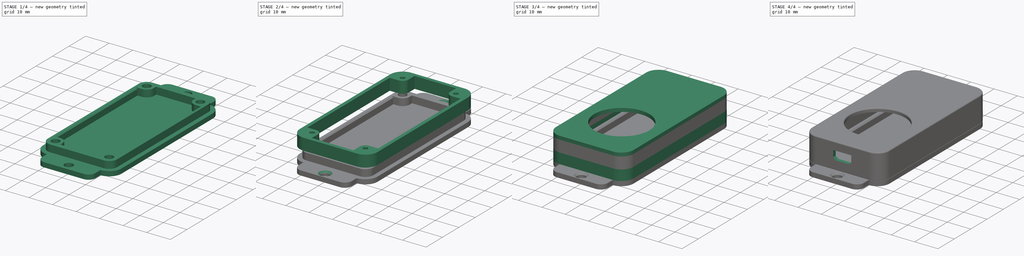
[diagram: build sequence overview — one tinted view per stage of 4, left to right]
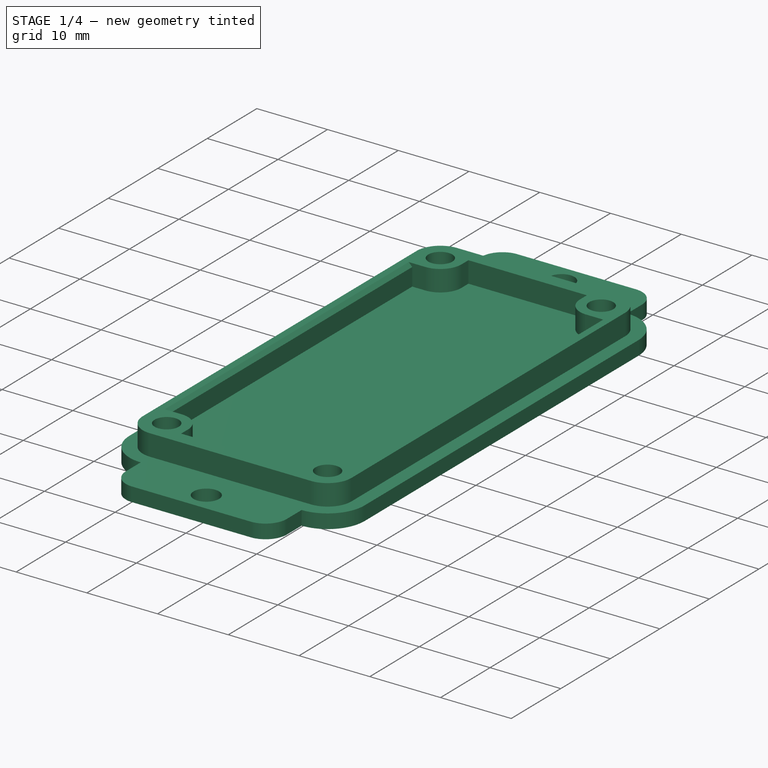
[diagram: stage 1 of 4 — iso view after this stage's code; geometry added in this stage tinted green]
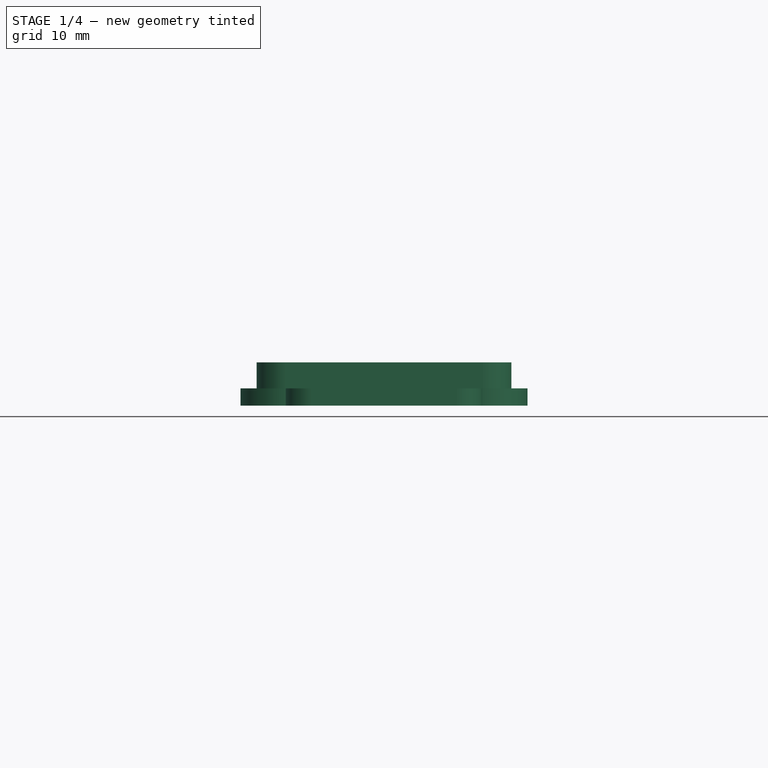
[diagram: stage 1 of 4 — front view after this stage's code; geometry added in this stage tinted green]
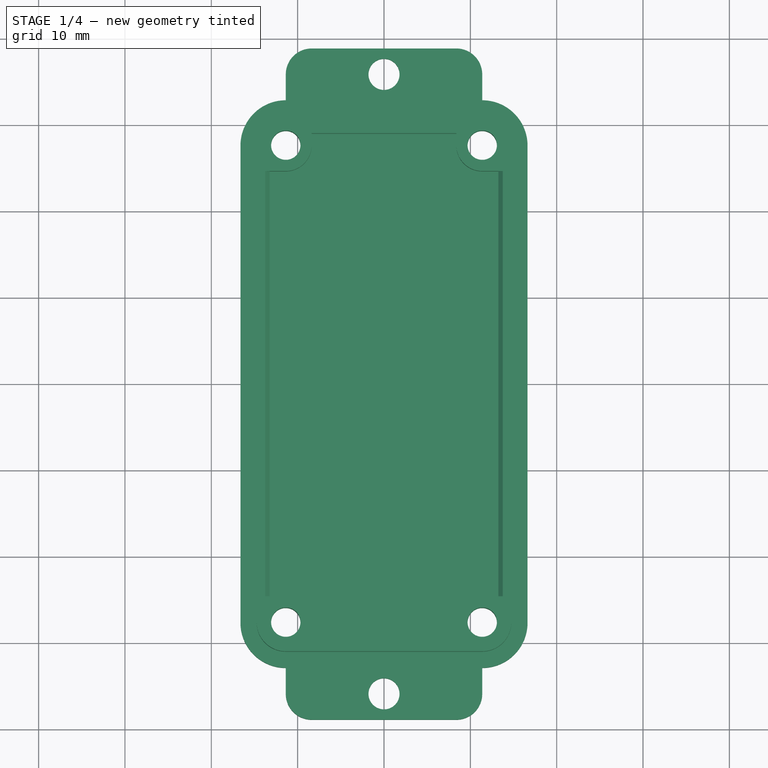
[diagram: stage 1 of 4 — top view after this stage's code; geometry added in this stage tinted green]
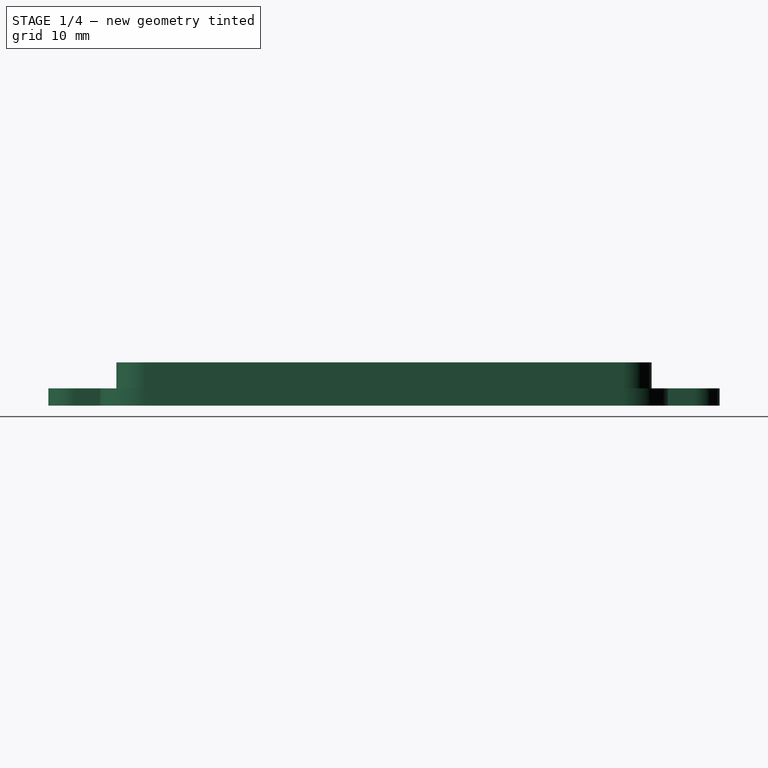
[diagram: stage 1 of 4 — right view after this stage's code; geometry added in this stage tinted green]
FCSTD DOCUMENT  (FreeCAD 0.19R)
Label: PIR Case V1
License: All rights reserved
LicenseURL: http://en.wikipedia.org/wiki/All_rights_reserved
objects: Sketcher::SketchObject×7, PartDesign::Pad×5, PartDesign::Chamfer×3, PartDesign::Fillet×2, PartDesign::Body×2, PartDesign::Pocket×1
note: 31 computed .brp shape members not serialized (recipe doc carries the construction recipe); baked Part::Feature solids carry a one-line shape summary decoded from their .brp

FEATURE [PartDesign::Body] Body  label="Front Section"
  Group = -> [Sketch,Sketch001,Pad,Sketch002,Pad001,Sketch003,Pad002,Sketch004,Pocket,Fillet,Fillet001]
  Origin = -> Origin
  Tip = -> Fillet001
FEATURE [Sketcher::SketchObject] Sketch005  label="Rear Panel Sketch"
  AttachmentOffset = pos=(0,0,-9.5) rot=(0,0,1;0rad)
  FullyConstrained = true
  MapMode = 5
  Placement = pos=(0,0,-9.5) rot=(0,0,1;0rad)
  Support = -> [XY_Plane001]
  sketch-geometry (47):
    g0: LineSegment StartX=-11.375 StartY=27.625 StartZ=0 EndX=11.375 EndY=27.625 EndZ=0
    g1: LineSegment StartX=11.375 StartY=27.625 StartZ=0 EndX=11.375 EndY=-27.625 EndZ=0
    g2: LineSegment StartX=11.375 StartY=-27.625 StartZ=0 EndX=-11.375 EndY=-27.625 EndZ=0
    g3: LineSegment StartX=-11.375 StartY=-27.625 StartZ=0 EndX=-11.375 EndY=27.625 EndZ=0
    g4: LineSegment StartX=-11.375 StartY=30.875 StartZ=0 EndX=11.375 EndY=30.875 EndZ=0
    g5: LineSegment StartX=14.625 StartY=27.625 StartZ=0 EndX=14.625 EndY=-27.625 EndZ=0
    g6: LineSegment StartX=11.375 StartY=-30.875 StartZ=0 EndX=-11.375 EndY=-30.875 EndZ=0
    g7: LineSegment StartX=-14.625 StartY=-27.625 StartZ=0 EndX=-14.625 EndY=27.625 EndZ=0
    g8: Circle CenterX=-11.375 CenterY=27.625 CenterZ=0 NormalX=0 NormalY=0 NormalZ=1 AngleXU=0 Radius=1.7
    g9: Circle CenterX=11.375 CenterY=27.625 CenterZ=0 NormalX=0 NormalY=0 NormalZ=1 AngleXU=0 Radius=1.7
    g10: Circle CenterX=11.375 CenterY=-27.625 CenterZ=0 NormalX=0 NormalY=0 NormalZ=1 AngleXU=0 Radius=1.7
    g11: Circle CenterX=-11.375 CenterY=-27.625 CenterZ=0 NormalX=0 NormalY=0 NormalZ=1 AngleXU=0 Radius=1.7
    g12: ArcOfCircle CenterX=11.375 CenterY=27.625 CenterZ=0 NormalX=0 NormalY=0 NormalZ=1 AngleXU=0 Radius=3.25 StartAngle=-1.3261e-12 EndAngle=1.5708
    g13: ArcOfCircle CenterX=-11.375 CenterY=27.625 CenterZ=0 NormalX=0 NormalY=0 NormalZ=1 AngleXU=0 Radius=3.25 StartAngle=1.5708 EndAngle=3.14159
    g14: ArcOfCircle CenterX=-11.375 CenterY=-27.625 CenterZ=0 NormalX=0 NormalY=0 NormalZ=1 AngleXU=0 Radius=3.25 StartAngle=3.14159 EndAngle=4.71239
    g15: ArcOfCircle CenterX=11.375 CenterY=-27.625 CenterZ=0 NormalX=0 NormalY=0 NormalZ=1 AngleXU=0 Radius=3.25 StartAngle=4.71239 EndAngle=6.28319
    g16: LineSegment StartX=0 StartY=-27.625 StartZ=0 EndX=0 EndY=-11.125 EndZ=0
    g17: LineSegment StartX=-11.375 StartY=31.375 StartZ=0 EndX=11.375 EndY=31.375 EndZ=0
    g18: LineSegment StartX=15.125 StartY=27.625 StartZ=0 EndX=15.125 EndY=-27.625 EndZ=0
    g19: LineSegment StartX=11.375 StartY=-31.375 StartZ=0 EndX=-11.375 EndY=-31.375 EndZ=0
    g20: LineSegment StartX=-15.125 StartY=-27.625 StartZ=0 EndX=-15.125 EndY=27.625 EndZ=0
    g21: ArcOfCircle CenterX=11.375 CenterY=27.625 CenterZ=0 NormalX=0 NormalY=0 NormalZ=1 AngleXU=0 Radius=3.75 StartAngle=-8.633e-13 EndAngle=1.5708
    g22: ArcOfCircle CenterX=-11.375 CenterY=27.625 CenterZ=0 NormalX=0 NormalY=0 NormalZ=1 AngleXU=0 Radius=3.75 StartAngle=1.5708 EndAngle=3.14159
    g23: ArcOfCircle CenterX=-11.375 CenterY=-27.625 CenterZ=0 NormalX=0 NormalY=0 NormalZ=1 AngleXU=0 Radius=3.75 StartAngle=3.14159 EndAngle=4.71239
    g24: ArcOfCircle CenterX=11.375 CenterY=-27.625 CenterZ=0 NormalX=0 NormalY=0 NormalZ=1 AngleXU=0 Radius=3.75 StartAngle=4.71239 EndAngle=6.28319
    g25: LineSegment StartX=-11.375 StartY=32.875 StartZ=0 EndX=11.375 EndY=32.875 EndZ=0
    g26: LineSegment StartX=16.625 StartY=27.625 StartZ=0 EndX=16.625 EndY=-27.625 EndZ=0
    g27: LineSegment StartX=11.375 StartY=-32.875 StartZ=0 EndX=-11.375 EndY=-32.875 EndZ=0
    g28: LineSegment StartX=-16.625 StartY=-27.625 StartZ=0 EndX=-16.625 EndY=27.625 EndZ=0
    g29: ArcOfCircle CenterX=-11.375 CenterY=27.625 CenterZ=0 NormalX=0 NormalY=0 NormalZ=1 AngleXU=0 Radius=5.25 StartAngle=1.5708 EndAngle=3.14159
    g30: ArcOfCircle CenterX=-11.375 CenterY=-27.625 CenterZ=0 NormalX=0 NormalY=0 NormalZ=1 AngleXU=0 Radius=5.25 StartAngle=3.14159 EndAngle=4.71239
    g31: ArcOfCircle CenterX=11.375 CenterY=-27.625 CenterZ=0 NormalX=0 NormalY=0 NormalZ=1 AngleXU=0 Radius=5.25 StartAngle=4.71239 EndAngle=6.28319
    g32: ArcOfCircle CenterX=11.375 CenterY=27.625 CenterZ=0 NormalX=0 NormalY=0 NormalZ=1 AngleXU=0 Radius=5.25 StartAngle=-3.144e-13 EndAngle=1.5708
    g33: LineSegment StartX=-8.375 StartY=-38.875 StartZ=0 EndX=8.375 EndY=-38.875 EndZ=0
    g34: LineSegment StartX=11.375 StartY=-35.875 StartZ=0 EndX=11.375 EndY=-32.875 EndZ=0
    g35: LineSegment StartX=-11.375 StartY=-32.875 StartZ=0 EndX=-11.375 EndY=-35.875 EndZ=0
    g36: LineSegment StartX=11.375 StartY=32.875 StartZ=0 EndX=11.375 EndY=35.875 EndZ=0
    g37: LineSegment StartX=8.375 StartY=38.875 StartZ=0 EndX=-8.375 EndY=38.875 EndZ=0
    g38: LineSegment StartX=-11.375 StartY=35.875 StartZ=0 EndX=-11.375 EndY=32.875 EndZ=0
    g39: LineSegment StartX=1.9e-15 StartY=32.875 StartZ=0 EndX=1.9e-15 EndY=38.875 EndZ=0
    g40: Circle CenterX=1.9e-15 CenterY=35.875 CenterZ=0 NormalX=0 NormalY=0 NormalZ=1 AngleXU=0 Radius=1.8
    g41: ArcOfCircle CenterX=8.375 CenterY=35.875 CenterZ=0 NormalX=0 NormalY=0 NormalZ=1 AngleXU=0 Radius=3 StartAngle=1.34829e-11 EndAngle=1.5708
    g42: ArcOfCircle CenterX=-8.375 CenterY=35.875 CenterZ=0 NormalX=0 NormalY=0 NormalZ=1 AngleXU=0 Radius=3 StartAngle=1.5708 EndAngle=3.14159
    g43: ArcOfCircle CenterX=-8.375 CenterY=-35.875 CenterZ=0 NormalX=0 NormalY=0 NormalZ=1 AngleXU=0 Radius=3 StartAngle=3.14159 EndAngle=4.71239
    g44: ArcOfCircle CenterX=8.375 CenterY=-35.875 CenterZ=0 NormalX=0 NormalY=0 NormalZ=1 AngleXU=0 Radius=3 StartAngle=4.71239 EndAngle=6.28319
    g45: LineSegment StartX=-1.3e-15 StartY=-38.875 StartZ=0 EndX=-1.3e-15 EndY=-32.875 EndZ=0
    g46: Circle CenterX=-1.3e-15 CenterY=-35.875 CenterZ=0 NormalX=0 NormalY=0 NormalZ=1 AngleXU=0 Radius=1.8
  constraints (104):
    c: Coincident(g0,g1)
    c: Coincident(g1,g2)
    c: Coincident(g2,g3)
    c: Coincident(g3,g0)
    c: Horizontal(g2)
    c: Vertical(g3)
    c: Horizontal(g4)
    c: Horizontal(g6)
    c: Vertical(g5)
    c: Coincident(g8,g0)
    c: Coincident(g9,g0)
    c: Coincident(g10,g1)
    c: Coincident(g11,g2)
    c: Radius(g11) = 1.7
    c: Equal(g11,g8)
    c: Equal(g11,g9)
    c: Equal(g11,g10)
    c: Symmetric(g0,g0,g-2)
    c: DistanceX(g0,g0) = 22.75
    c: Symmetric(g0,g1,g-1)
    c: DistanceY(g1,g1) = 55.25
    c: Tangent(g4,g12) = 1.5708
    c: Tangent(g5,g12) = 1.5708
    c: Tangent(g4,g13) = 1.5708
    c: Tangent(g7,g13) = 1.5708
    c: Tangent(g7,g14) = 1.5708
    c: Tangent(g6,g14) = 1.5708
    c: Tangent(g6,g15) = 1.5708
    c: Tangent(g5,g15) = 1.5708
    c: Coincident(g15,g1)
    c: Coincident(g2,g14)
    c: Coincident(g13,g0)
    c: Coincident(g12,g0)
    c: DistanceX(g7,g5) = 29.25
    c: Vertical(g16)
    c: DistanceY(g16,g16) = 16.5
    c: PointOnObject(g16,g2)
    c: PointOnObject(g16,g-2)
    c: Horizontal(g17)
    c: Horizontal(g19)
    c: Vertical(g18)
    c: Tangent(g17,g21) = 1.5708
    c: Tangent(g18,g21) = 1.5708
    c: Tangent(g17,g22) = 1.5708
    c: Tangent(g20,g22) = 1.5708
    c: Tangent(g20,g23) = 1.5708
    c: Tangent(g19,g23) = 1.5708
    c: Tangent(g19,g24) = 1.5708
    c: Tangent(g18,g24) = 1.5708
    c: Coincident(g24,g1)
    c: Coincident(g23,g2)
    c: Coincident(g21,g0)
    c: Coincident(g0,g22)
    c: DistanceY(g4,g17) = 0.5
    c: Horizontal(g25)
    c: Horizontal(g27)
    c: Vertical(g26)
    c: Tangent(g25,g29) = 1.5708
    c: Tangent(g28,g29) = 1.5708
    c: Tangent(g28,g30) = 1.5708
    c: Tangent(g27,g30) = 1.5708
    c: Tangent(g27,g31) = 1.5708
    c: Tangent(g26,g31) = 1.5708
    c: Tangent(g26,g32) = 1.5708
    c: Tangent(g25,g32) = 1.5708
    c: Coincident(g29,g22)
    c: Coincident(g21,g32)
    c: Coincident(g30,g23)
    c: Coincident(g31,g24)
    c: DistanceY(g17,g25) = 1.5
    c: Horizontal(g33)
    c: Vertical(g34)
    c: Vertical(g35)
    c: Coincident(g31,g34)
    c: Coincident(g35,g30)
    c: Horizontal(g37)
    c: Vertical(g36)
    c: Vertical(g38)
    c: Coincident(g38,g29)
    c: Coincident(g36,g32)
    c: Vertical(g39)
    c: Symmetric(g39,g39,g40)
    c: Tangent(g37,g41) = -1.5708
    c: Tangent(g36,g41) = -1.5708
    c: Tangent(g37,g42) = -1.5708
    c: Tangent(g38,g42) = -1.5708
    c: Symmetric(g37,g37,g39)
    c: PointOnObject(g39,g25)
    c: Tangent(g33,g43) = -1.5708
    c: Tangent(g35,g43) = -1.5708
    c: Tangent(g33,g44) = -1.5708
    c: Tangent(g34,g44) = -1.5708
    c: Vertical(g45)
    c: Symmetric(g45,g45,g46)
    c: Symmetric(g33,g33,g45)
    c: PointOnObject(g45,g27)
    c: Radius(g43) = 3
    c: Equal(g43,g44)
    c: Equal(g43,g42)
    c: Equal(g43,g41)
    c: Radius(g40) = 1.8
    c: Equal(g40,g46)
    c: Equal(g34,g36)
    c: DistanceY(g32,g37) = 6
FEATURE [PartDesign::Pad] Pad003  label="Rear Plate"
  Direction = (1,1,1)
  Length = 2
  Length2 = 100
  Profile = -> Sketch005
  Reversed = true
  Type = 0
FEATURE [Sketcher::SketchObject] Sketch006  label="Rear Panel Screw Holes"
  AttachmentOffset = pos=(0,0,-9.5) rot=(0,0,1;0rad)
  FullyConstrained = true
  MapMode = 5
  Placement = pos=(0,0,-9.5) rot=(0,0,1;0rad)
  Support = -> [XY_Plane001]
  sketch-geometry (49):
    g0: LineSegment StartX=-11.375 StartY=27.625 StartZ=0 EndX=11.375 EndY=27.625 EndZ=0
    g1: LineSegment StartX=11.375 StartY=27.625 StartZ=0 EndX=11.375 EndY=-27.625 EndZ=0
    g2: LineSegment StartX=11.375 StartY=-27.625 StartZ=0 EndX=-11.375 EndY=-27.625 EndZ=0
    g3: LineSegment StartX=-11.375 StartY=-27.625 StartZ=0 EndX=-11.375 EndY=27.625 EndZ=0
    g4: LineSegment StartX=-11.375 StartY=31 StartZ=0 EndX=11.375 EndY=31 EndZ=0
    g5: LineSegment StartX=14.75 StartY=27.625 StartZ=0 EndX=14.75 EndY=-27.625 EndZ=0
    g6: LineSegment StartX=11.375 StartY=-31 StartZ=0 EndX=-11.375 EndY=-31 EndZ=0
    g7: LineSegment StartX=-14.75 StartY=-27.625 StartZ=0 EndX=-14.75 EndY=27.625 EndZ=0
    g8: Circle CenterX=-11.375 CenterY=27.625 CenterZ=0 NormalX=0 NormalY=0 NormalZ=1 AngleXU=0 Radius=1.7
    g9: Circle CenterX=11.375 CenterY=27.625 CenterZ=0 NormalX=0 NormalY=0 NormalZ=1 AngleXU=0 Radius=1.7
    g10: Circle CenterX=11.375 CenterY=-27.625 CenterZ=0 NormalX=0 NormalY=0 NormalZ=1 AngleXU=0 Radius=1.7
    g11: Circle CenterX=-11.375 CenterY=-27.625 CenterZ=0 NormalX=0 NormalY=0 NormalZ=1 AngleXU=0 Radius=1.7
    g12: ArcOfCircle CenterX=11.375 CenterY=27.625 CenterZ=0 NormalX=0 NormalY=0 NormalZ=1 AngleXU=0 Radius=3.375 StartAngle=0 EndAngle=1.5708
    g13: ArcOfCircle CenterX=-11.375 CenterY=27.625 CenterZ=0 NormalX=0 NormalY=0 NormalZ=1 AngleXU=0 Radius=3.375 StartAngle=1.5708 EndAngle=3.14159
    g14: ArcOfCircle CenterX=-11.375 CenterY=-27.625 CenterZ=0 NormalX=0 NormalY=0 NormalZ=1 AngleXU=0 Radius=3.375 StartAngle=3.14159 EndAngle=4.71239
    g15: ArcOfCircle CenterX=11.375 CenterY=-27.625 CenterZ=0 NormalX=0 NormalY=0 NormalZ=1 AngleXU=0 Radius=3.375 StartAngle=4.71239 EndAngle=6.28319
    g16: LineSegment StartX=0 StartY=-27.625 StartZ=0 EndX=0 EndY=-11.125 EndZ=0
    g17: LineSegment StartX=-11.375 StartY=31.5 StartZ=0 EndX=11.375 EndY=31.5 EndZ=0
    g18: LineSegment StartX=15.25 StartY=27.625 StartZ=0 EndX=15.25 EndY=-27.625 EndZ=0
    g19: LineSegment StartX=11.375 StartY=-31.5 StartZ=0 EndX=-11.375 EndY=-31.5 EndZ=0
    g20: LineSegment StartX=-15.25 StartY=-27.625 StartZ=0 EndX=-15.25 EndY=27.625 EndZ=0
    g21: ArcOfCircle CenterX=11.375 CenterY=27.625 CenterZ=0 NormalX=0 NormalY=0 NormalZ=1 AngleXU=0 Radius=3.875 StartAngle=0 EndAngle=1.5708
    g22: ArcOfCircle CenterX=-11.375 CenterY=27.625 CenterZ=0 NormalX=0 NormalY=0 NormalZ=1 AngleXU=0 Radius=3.875 StartAngle=1.5708 EndAngle=3.14159
    g23: ArcOfCircle CenterX=-11.375 CenterY=-27.625 CenterZ=0 NormalX=0 NormalY=0 NormalZ=1 AngleXU=0 Radius=3.875 StartAngle=3.14159 EndAngle=4.71239
    g24: ArcOfCircle CenterX=11.375 CenterY=-27.625 CenterZ=0 NormalX=0 NormalY=0 NormalZ=1 AngleXU=0 Radius=3.875 StartAngle=4.71239 EndAngle=6.28319
    g25: LineSegment StartX=-11.375 StartY=33 StartZ=0 EndX=11.375 EndY=33 EndZ=0
    g26: LineSegment StartX=16.75 StartY=27.625 StartZ=0 EndX=16.75 EndY=-27.625 EndZ=0
    g27: LineSegment StartX=11.375 StartY=-33 StartZ=0 EndX=-11.375 EndY=-33 EndZ=0
    g28: LineSegment StartX=-16.75 StartY=-27.625 StartZ=0 EndX=-16.75 EndY=27.625 EndZ=0
    g29: ArcOfCircle CenterX=-11.375 CenterY=27.625 CenterZ=0 NormalX=0 NormalY=0 NormalZ=1 AngleXU=0 Radius=5.375 StartAngle=1.5708 EndAngle=3.14159
    g30: ArcOfCircle CenterX=-11.375 CenterY=-27.625 CenterZ=0 NormalX=0 NormalY=0 NormalZ=1 AngleXU=0 Radius=5.375 StartAngle=3.14159 EndAngle=4.71239
    g31: ArcOfCircle CenterX=11.375 CenterY=-27.625 CenterZ=0 NormalX=0 NormalY=0 NormalZ=1 AngleXU=0 Radius=5.375 StartAngle=4.71239 EndAngle=6.28319
    g32: ArcOfCircle CenterX=11.375 CenterY=27.625 CenterZ=0 NormalX=0 NormalY=0 NormalZ=1 AngleXU=0 Radius=5.375 StartAngle=0 EndAngle=1.5708
    g33: ArcOfCircle CenterX=-11.375 CenterY=-27.625 CenterZ=0 NormalX=0 NormalY=0 NormalZ=1 AngleXU=0 Radius=3 StartAngle=-9e-16 EndAngle=1.5708
    g34: ArcOfCircle CenterX=11.375 CenterY=-27.625 CenterZ=0 NormalX=0 NormalY=0 NormalZ=1 AngleXU=0 Radius=3 StartAngle=1.5708 EndAngle=3.14159
    g35: LineSegment StartX=8.375 StartY=-29 StartZ=0 EndX=-8.375 EndY=-29 EndZ=0
    g36: LineSegment StartX=-8.375 StartY=-29 StartZ=0 EndX=-8.375 EndY=-27.625 EndZ=0
    g37: LineSegment StartX=8.375 StartY=-27.625 StartZ=0 EndX=8.375 EndY=-29 EndZ=0
    g38: ArcOfCircle CenterX=-11.375 CenterY=27.625 CenterZ=0 NormalX=0 NormalY=0 NormalZ=1 AngleXU=0 Radius=3 StartAngle=4.71239 EndAngle=6.28319
    g39: ArcOfCircle CenterX=11.375 CenterY=27.625 CenterZ=0 NormalX=0 NormalY=0 NormalZ=1 AngleXU=0 Radius=3 StartAngle=3.14159 EndAngle=4.71239
    g40: LineSegment StartX=-8.375 StartY=29 StartZ=0 EndX=8.375 EndY=29 EndZ=0
    g41: LineSegment StartX=8.375 StartY=29 StartZ=0 EndX=8.375 EndY=27.625 EndZ=0
    g42: LineSegment StartX=-8.375 StartY=27.625 StartZ=0 EndX=-8.375 EndY=29 EndZ=0
    g43: LineSegment StartX=-13.25 StartY=-24.625 StartZ=0 EndX=-11.375 EndY=-24.625 EndZ=0
    g44: LineSegment StartX=13.25 StartY=-24.625 StartZ=0 EndX=11.375 EndY=-24.625 EndZ=0
    g45: LineSegment StartX=-13.25 StartY=24.625 StartZ=0 EndX=-11.375 EndY=24.625 EndZ=0
    g46: LineSegment StartX=13.25 StartY=24.625 StartZ=0 EndX=11.375 EndY=24.625 EndZ=0
    g47: LineSegment StartX=-13.25 StartY=-24.625 StartZ=0 EndX=-13.25 EndY=24.625 EndZ=0
    g48: LineSegment StartX=13.25 StartY=24.625 StartZ=0 EndX=13.25 EndY=-24.625 EndZ=0
  constraints (118):
    c: Coincident(g0,g1)
    c: Coincident(g1,g2)
    c: Coincident(g2,g3)
    c: Coincident(g3,g0)
    c: Horizontal(g2)
    c: Vertical(g3)
    c: Horizontal(g4)
    c: Horizontal(g6)
    c: Vertical(g5)
    c: Coincident(g8,g0)
    c: Coincident(g9,g0)
    c: Coincident(g10,g1)
    c: Coincident(g11,g2)
    c: Radius(g11) = 1.7
    c: Equal(g11,g8)
    c: Equal(g11,g9)
    c: Equal(g11,g10)
    c: Symmetric(g0,g0,g-2)
    c: DistanceX(g0,g0) = 22.75
    c: Symmetric(g0,g1,g-1)
    c: DistanceY(g1,g1) = 55.25
    c: Tangent(g4,g12) = 1.5708
    c: Tangent(g5,g12) = 1.5708
    c: Tangent(g4,g13) = 1.5708
    c: Tangent(g7,g13) = 1.5708
    c: Tangent(g7,g14) = 1.5708
    c: Tangent(g6,g14) = 1.5708
    c: Tangent(g6,g15) = 1.5708
    c: Tangent(g5,g15) = 1.5708
    c: Coincident(g15,g1)
    c: Coincident(g2,g14)
    c: Coincident(g13,g0)
    c: Coincident(g12,g0)
    c: DistanceX(g7,g5) = 29.5
    c: Vertical(g16)
    c: DistanceY(g16,g16) = 16.5
    c: PointOnObject(g16,g2)
    c: PointOnObject(g16,g-2)
    c: Horizontal(g17)
    c: Horizontal(g19)
    c: Vertical(g18)
    c: Tangent(g17,g21) = 1.5708
    c: Tangent(g18,g21) = 1.5708
    c: Tangent(g17,g22) = 1.5708
    c: Tangent(g20,g22) = 1.5708
    c: Tangent(g20,g23) = 1.5708
    c: Tangent(g19,g23) = 1.5708
    c: Tangent(g19,g24) = 1.5708
    c: Tangent(g18,g24) = 1.5708
    c: Coincident(g24,g1)
    c: Coincident(g23,g2)
    c: Coincident(g21,g0)
    c: Coincident(g0,g22)
    c: DistanceY(g4,g17) = 0.5
    c: Horizontal(g25)
    c: Horizontal(g27)
    c: Vertical(g26)
    c: Tangent(g25,g29) = 1.5708
    c: Tangent(g28,g29) = 1.5708
    c: Tangent(g28,g30) = 1.5708
    c: Tangent(g27,g30) = 1.5708
    c: Tangent(g27,g31) = 1.5708
    c: Tangent(g26,g31) = 1.5708
    c: Tangent(g26,g32) = 1.5708
    c: Tangent(g25,g32) = 1.5708
    c: Coincident(g29,g22)
    c: Coincident(g21,g32)
    c: Coincident(g30,g23)
    c: Coincident(g31,g24)
    c: DistanceY(g17,g25) = 1.5
    c: Coincident(g33,g11)
    c: PointOnObject(g33,g3)
    c: PointOnObject(g33,g2)
    c: Radius(g33) = 3
    c: Coincident(g34,g10)
    c: PointOnObject(g34,g2)
    c: PointOnObject(g34,g1)
    c: Equal(g33,g34)
    c: Coincident(g35,g36)
    c: Coincident(g37,g35)
    c: Horizontal(g35)
    c: Vertical(g36)
    c: Vertical(g37)
    c: Coincident(g36,g33)
    c: Coincident(g34,g37)
    c: DistanceY(g6,g35) = 2
    c: Coincident(g38,g8)
    c: PointOnObject(g38,g3)
    c: PointOnObject(g38,g0)
    c: Coincident(g39,g9)
    c: PointOnObject(g39,g0)
    c: PointOnObject(g39,g1)
    c: Coincident(g40,g41)
    c: Coincident(g42,g40)
    c: Horizontal(g40)
    c: Vertical(g41)
    c: Vertical(g42)
    c: Coincident(g41,g39)
    c: Coincident(g42,g38)
    c: Equal(g37,g41)
    c: Equal(g38,g39)
    c: Equal(g39,g34)
    c: Horizontal(g43)
    c: Horizontal(g44)
    c: Coincident(g43,g33)
    c: Coincident(g44,g34)
    c: Horizontal(g45)
    c: Horizontal(g46)
    c: Coincident(g45,g38)
    c: Coincident(g46,g39)
    c: Coincident(g47,g43)
    c: Coincident(g47,g45)
    c: Vertical(g47)
    c: Coincident(g48,g46)
    c: Coincident(g48,g44)
    c: Vertical(g48)
    c: DistanceX(g44,g5) = 1.5
    c: Equal(g44,g43)
FEATURE [PartDesign::Pad] Pad004  label="Fixing Plate"
  BaseFeature = -> Pad003
  Direction = (1,1,1)
  Length = 3
  Length2 = 100
  Profile = -> Sketch006
  Type = 0
FEATURE [PartDesign::Chamfer] Chamfer  label="Connector Chamfer"
  Angle = 45
  Base = -> Pad004 [Edge106,Edge98]
  BaseFeature = -> Pad004
  ChamferType = 0
  FlipDirection = false
  Size = 0.5
  Size2 = 1
  SupportTransform = false
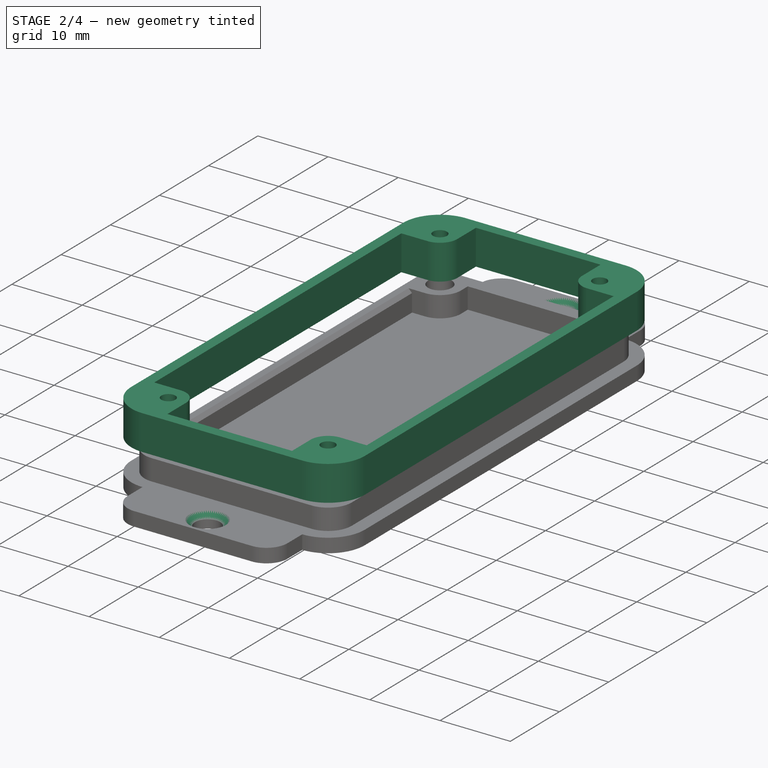
[diagram: stage 2 of 4 — iso view after this stage's code; geometry added in this stage tinted green]
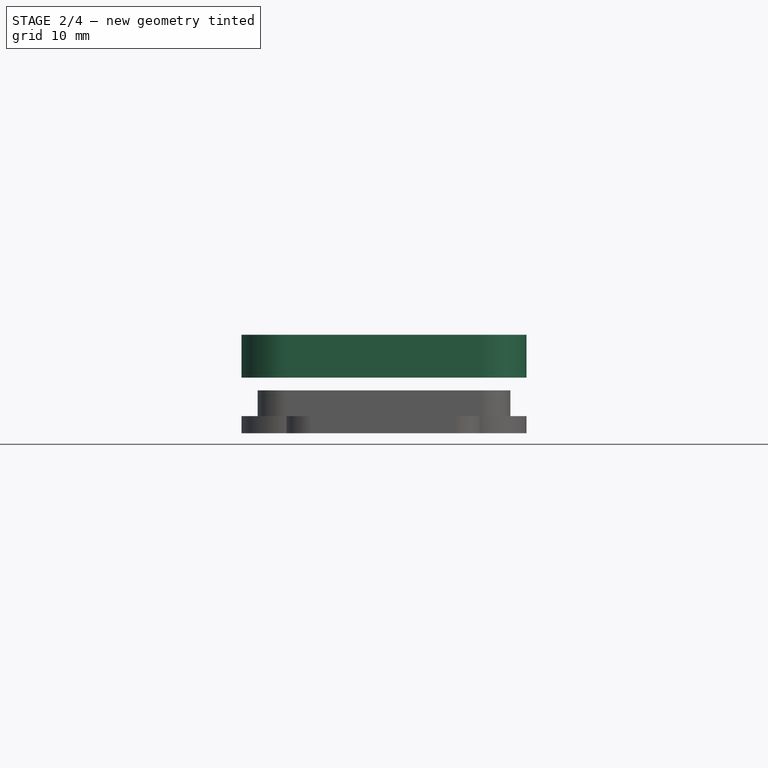
[diagram: stage 2 of 4 — front view after this stage's code; geometry added in this stage tinted green]
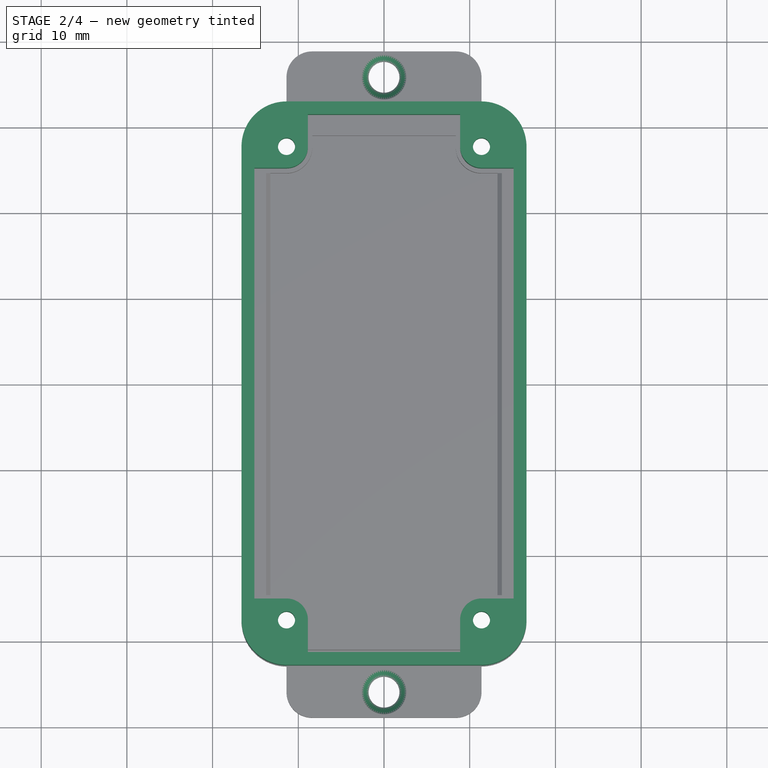
[diagram: stage 2 of 4 — top view after this stage's code; geometry added in this stage tinted green]
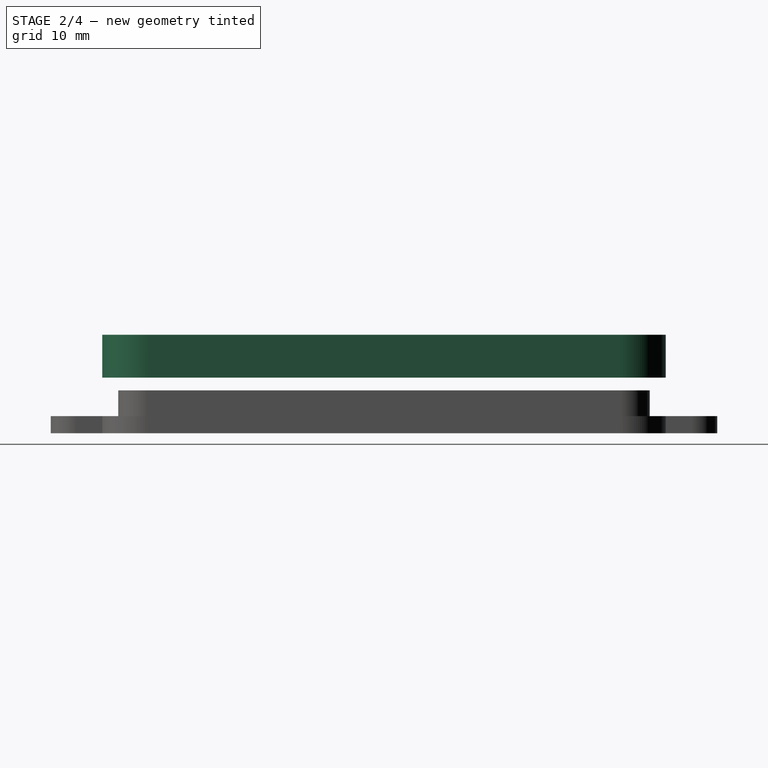
[diagram: stage 2 of 4 — right view after this stage's code; geometry added in this stage tinted green]
FEATURE [Sketcher::SketchObject] Sketch  label="PCB Sketch"
  FullyConstrained = true
  MapMode = 5
  Support = -> [XY_Plane]
  sketch-geometry (17):
    g0: LineSegment StartX=-11.375 StartY=27.625 StartZ=0 EndX=11.375 EndY=27.625 EndZ=0
    g1: LineSegment StartX=11.375 StartY=27.625 StartZ=0 EndX=11.375 EndY=-27.625 EndZ=0
    g2: LineSegment StartX=11.375 StartY=-27.625 StartZ=0 EndX=-11.375 EndY=-27.625 EndZ=0
    g3: LineSegment StartX=-11.375 StartY=-27.625 StartZ=0 EndX=-11.375 EndY=27.625 EndZ=0
    g4: LineSegment StartX=-11.375 StartY=30.875 StartZ=0 EndX=11.375 EndY=30.875 EndZ=0
    g5: LineSegment StartX=14.625 StartY=27.625 StartZ=0 EndX=14.625 EndY=-27.625 EndZ=0
    g6: LineSegment StartX=11.375 StartY=-30.875 StartZ=0 EndX=-11.375 EndY=-30.875 EndZ=0
    g7: LineSegment StartX=-14.625 StartY=-27.625 StartZ=0 EndX=-14.625 EndY=27.625 EndZ=0
    g8: Circle CenterX=-11.375 CenterY=27.625 CenterZ=0 NormalX=0 NormalY=0 NormalZ=1 AngleXU=0 Radius=1.2
    g9: Circle CenterX=11.375 CenterY=27.625 CenterZ=0 NormalX=0 NormalY=0 NormalZ=1 AngleXU=0 Radius=1.2
    g10: Circle CenterX=11.375 CenterY=-27.625 CenterZ=0 NormalX=0 NormalY=0 NormalZ=1 AngleXU=0 Radius=1.2
    g11: Circle CenterX=-11.375 CenterY=-27.625 CenterZ=0 NormalX=0 NormalY=0 NormalZ=1 AngleXU=0 Radius=1.2
    g12: ArcOfCircle CenterX=11.375 CenterY=27.625 CenterZ=0 NormalX=0 NormalY=0 NormalZ=1 AngleXU=0 Radius=3.25 StartAngle=1e-16 EndAngle=1.5708
    g13: ArcOfCircle CenterX=-11.375 CenterY=27.625 CenterZ=0 NormalX=0 NormalY=0 NormalZ=1 AngleXU=0 Radius=3.25 StartAngle=1.5708 EndAngle=3.14159
    g14: ArcOfCircle CenterX=-11.375 CenterY=-27.625 CenterZ=0 NormalX=0 NormalY=0 NormalZ=1 AngleXU=0 Radius=3.25 StartAngle=3.14159 EndAngle=4.71239
    g15: ArcOfCircle CenterX=11.375 CenterY=-27.625 CenterZ=0 NormalX=0 NormalY=0 NormalZ=1 AngleXU=0 Radius=3.25 StartAngle=4.71239 EndAngle=6.28319
    g16: LineSegment StartX=0 StartY=-27.625 StartZ=0 EndX=0 EndY=-11.125 EndZ=0
  constraints (38):
    c: Coincident(g0,g1)
    c: Coincident(g1,g2)
    c: Coincident(g2,g3)
    c: Coincident(g3,g0)
    c: Horizontal(g2)
    c: Vertical(g3)
    c: Horizontal(g4)
    c: Horizontal(g6)
    c: Vertical(g5)
    c: Coincident(g8,g0)
    c: Coincident(g9,g0)
    c: Coincident(g10,g1)
    c: Coincident(g11,g2)
    c: Radius(g11) = 1.2
    c: Equal(g11,g8)
    c: Equal(g11,g9)
    c: Equal(g11,g10)
    c: Symmetric(g0,g0,g-2)
    c: DistanceX(g0,g0) = 22.75
    c: Symmetric(g0,g1,g-1)
    c: DistanceY(g1,g1) = 55.25
    c: Tangent(g4,g12) = 1.5708
    c: Tangent(g5,g12) = 1.5708
    c: Tangent(g4,g13) = 1.5708
    c: Tangent(g7,g13) = 1.5708
    c: Tangent(g7,g14) = 1.5708
    c: Tangent(g6,g14) = 1.5708
    c: Tangent(g6,g15) = 1.5708
    c: Tangent(g5,g15) = 1.5708
    c: Coincident(g15,g1)
    c: Coincident(g2,g14)
    c: Coincident(g13,g0)
    c: Coincident(g12,g0)
    c: DistanceX(g7,g5) = 29.25
    c: Vertical(g16)
    c: DistanceY(g16,g16) = 16.5
    c: PointOnObject(g16,g2)
    c: PointOnObject(g16,g-2)
FEATURE [Sketcher::SketchObject] Sketch001  label="PCB Frame Sketch"
  FullyConstrained = true
  MapMode = 5
  Support = -> [XY_Plane]
  sketch-geometry (49):
    g0: LineSegment StartX=-11.375 StartY=27.625 StartZ=0 EndX=11.375 EndY=27.625 EndZ=0
    g1: LineSegment StartX=11.375 StartY=27.625 StartZ=0 EndX=11.375 EndY=-27.625 EndZ=0
    g2: LineSegment StartX=11.375 StartY=-27.625 StartZ=0 EndX=-11.375 EndY=-27.625 EndZ=0
    g3: LineSegment StartX=-11.375 StartY=-27.625 StartZ=0 EndX=-11.375 EndY=27.625 EndZ=0
    g4: LineSegment StartX=-11.375 StartY=30.875 StartZ=0 EndX=11.375 EndY=30.875 EndZ=0
    g5: LineSegment StartX=14.625 StartY=27.625 StartZ=0 EndX=14.625 EndY=-27.625 EndZ=0
    g6: LineSegment StartX=11.375 StartY=-30.875 StartZ=0 EndX=-11.375 EndY=-30.875 EndZ=0
    g7: LineSegment StartX=-14.625 StartY=-27.625 StartZ=0 EndX=-14.625 EndY=27.625 EndZ=0
    g8: Circle CenterX=-11.375 CenterY=27.625 CenterZ=0 NormalX=0 NormalY=0 NormalZ=1 AngleXU=0 Radius=1
    g9: Circle CenterX=11.375 CenterY=27.625 CenterZ=0 NormalX=0 NormalY=0 NormalZ=1 AngleXU=0 Radius=1
    g10: Circle CenterX=11.375 CenterY=-27.625 CenterZ=0 NormalX=0 NormalY=0 NormalZ=1 AngleXU=0 Radius=1
    g11: Circle CenterX=-11.375 CenterY=-27.625 CenterZ=0 NormalX=0 NormalY=0 NormalZ=1 AngleXU=0 Radius=1
    g12: ArcOfCircle CenterX=11.375 CenterY=27.625 CenterZ=0 NormalX=0 NormalY=0 NormalZ=1 AngleXU=0 Radius=3.25 StartAngle=-9e-16 EndAngle=1.5708
    g13: ArcOfCircle CenterX=-11.375 CenterY=27.625 CenterZ=0 NormalX=0 NormalY=0 NormalZ=1 AngleXU=0 Radius=3.25 StartAngle=1.5708 EndAngle=3.14159
    g14: ArcOfCircle CenterX=-11.375 CenterY=-27.625 CenterZ=0 NormalX=0 NormalY=0 NormalZ=1 AngleXU=0 Radius=3.25 StartAngle=3.14159 EndAngle=4.71239
    g15: ArcOfCircle CenterX=11.375 CenterY=-27.625 CenterZ=0 NormalX=0 NormalY=0 NormalZ=1 AngleXU=0 Radius=3.25 StartAngle=4.71239 EndAngle=6.28319
    g16: LineSegment StartX=0 StartY=-27.625 StartZ=0 EndX=0 EndY=-11.125 EndZ=0
    g17: LineSegment StartX=-11.375 StartY=31.375 StartZ=0 EndX=11.375 EndY=31.375 EndZ=0
    g18: LineSegment StartX=15.125 StartY=27.625 StartZ=0 EndX=15.125 EndY=-27.625 EndZ=0
    g19: LineSegment StartX=11.375 StartY=-31.375 StartZ=0 EndX=-11.375 EndY=-31.375 EndZ=0
    g20: LineSegment StartX=-15.125 StartY=-27.625 StartZ=0 EndX=-15.125 EndY=27.625 EndZ=0
    g21: ArcOfCircle CenterX=11.375 CenterY=27.625 CenterZ=0 NormalX=0 NormalY=0 NormalZ=1 AngleXU=0 Radius=3.75 StartAngle=0 EndAngle=1.5708
    g22: ArcOfCircle CenterX=-11.375 CenterY=27.625 CenterZ=0 NormalX=0 NormalY=0 NormalZ=1 AngleXU=0 Radius=3.75 StartAngle=1.5708 EndAngle=3.14159
    g23: ArcOfCircle CenterX=-11.375 CenterY=-27.625 CenterZ=0 NormalX=0 NormalY=0 NormalZ=1 AngleXU=0 Radius=3.75 StartAngle=3.14159 EndAngle=4.71239
    g24: ArcOfCircle CenterX=11.375 CenterY=-27.625 CenterZ=0 NormalX=0 NormalY=0 NormalZ=1 AngleXU=0 Radius=3.75 StartAngle=4.71239 EndAngle=6.28319
    g25: LineSegment StartX=-11.375 StartY=32.875 StartZ=0 EndX=11.375 EndY=32.875 EndZ=0
    g26: LineSegment StartX=16.625 StartY=27.625 StartZ=0 EndX=16.625 EndY=-27.625 EndZ=0
    g27: LineSegment StartX=11.375 StartY=-32.875 StartZ=0 EndX=-11.375 EndY=-32.875 EndZ=0
    g28: LineSegment StartX=-16.625 StartY=-27.625 StartZ=0 EndX=-16.625 EndY=27.625 EndZ=0
    g29: ArcOfCircle CenterX=-11.375 CenterY=27.625 CenterZ=0 NormalX=0 NormalY=0 NormalZ=1 AngleXU=0 Radius=5.25 StartAngle=1.5708 EndAngle=3.14159
    g30: ArcOfCircle CenterX=-11.375 CenterY=-27.625 CenterZ=0 NormalX=0 NormalY=0 NormalZ=1 AngleXU=0 Radius=5.25 StartAngle=3.14159 EndAngle=4.71239
    g31: ArcOfCircle CenterX=11.375 CenterY=-27.625 CenterZ=0 NormalX=0 NormalY=0 NormalZ=1 AngleXU=0 Radius=5.25 StartAngle=4.71239 EndAngle=6.28319
    g32: ArcOfCircle CenterX=11.375 CenterY=27.625 CenterZ=0 NormalX=0 NormalY=0 NormalZ=1 AngleXU=0 Radius=5.25 StartAngle=0 EndAngle=1.5708
    g33: ArcOfCircle CenterX=-11.375 CenterY=-27.625 CenterZ=0 NormalX=0 NormalY=0 NormalZ=1 AngleXU=0 Radius=2.5 StartAngle=0 EndAngle=1.5708
    g34: ArcOfCircle CenterX=11.375 CenterY=-27.625 CenterZ=0 NormalX=0 NormalY=0 NormalZ=1 AngleXU=0 Radius=2.5 StartAngle=1.5708 EndAngle=3.14159
    g35: ArcOfCircle CenterX=-11.375 CenterY=27.625 CenterZ=0 NormalX=0 NormalY=0 NormalZ=1 AngleXU=0 Radius=2.5 StartAngle=4.71239 EndAngle=6.28319
    g36: ArcOfCircle CenterX=11.375 CenterY=27.625 CenterZ=0 NormalX=0 NormalY=0 NormalZ=1 AngleXU=0 Radius=2.5 StartAngle=3.14159 EndAngle=4.71239
    g37: LineSegment StartX=-8.875 StartY=31.375 StartZ=0 EndX=8.875 EndY=31.375 EndZ=0
    g38: LineSegment StartX=8.875 StartY=31.375 StartZ=0 EndX=8.875 EndY=27.625 EndZ=0
    g39: LineSegment StartX=-8.875 StartY=27.625 StartZ=0 EndX=-8.875 EndY=31.375 EndZ=0
    g40: LineSegment StartX=-15.125 StartY=25.125 StartZ=0 EndX=-11.375 EndY=25.125 EndZ=0
    g41: LineSegment StartX=-11.375 StartY=-25.125 StartZ=0 EndX=-15.125 EndY=-25.125 EndZ=0
    g42: LineSegment StartX=-15.125 StartY=-25.125 StartZ=0 EndX=-15.125 EndY=25.125 EndZ=0
    g43: LineSegment StartX=15.125 StartY=-25.125 StartZ=0 EndX=11.375 EndY=-25.125 EndZ=0
    g44: LineSegment StartX=11.375 StartY=25.125 StartZ=0 EndX=15.125 EndY=25.125 EndZ=0
    g45: LineSegment StartX=15.125 StartY=25.125 StartZ=0 EndX=15.125 EndY=-25.125 EndZ=0
    g46: LineSegment StartX=8.875 StartY=-31.375 StartZ=0 EndX=-8.875 EndY=-31.375 EndZ=0
    g47: LineSegment StartX=-8.875 StartY=-31.375 StartZ=0 EndX=-8.875 EndY=-27.625 EndZ=0
    g48: LineSegment StartX=8.875 StartY=-27.625 StartZ=0 EndX=8.875 EndY=-31.375 EndZ=0
  constraints (118):
    c: Coincident(g0,g1)
    c: Coincident(g1,g2)
    c: Coincident(g2,g3)
    c: Coincident(g3,g0)
    c: Horizontal(g2)
    c: Vertical(g3)
    c: Horizontal(g4)
    c: Horizontal(g6)
    c: Vertical(g5)
    c: Coincident(g8,g0)
    c: Coincident(g9,g0)
    c: Coincident(g10,g1)
    c: Coincident(g11,g2)
    c: Radius(g11) = 1
    c: Equal(g11,g8)
    c: Equal(g11,g9)
    c: Equal(g11,g10)
    c: Symmetric(g0,g0,g-2)
    c: DistanceX(g0,g0) = 22.75
    c: Symmetric(g0,g1,g-1)
    c: DistanceY(g1,g1) = 55.25
    c: Tangent(g4,g12) = 1.5708
    c: Tangent(g5,g12) = 1.5708
    c: Tangent(g4,g13) = 1.5708
    c: Tangent(g7,g13) = 1.5708
    c: Tangent(g7,g14) = 1.5708
    c: Tangent(g6,g14) = 1.5708
    c: Tangent(g6,g15) = 1.5708
    c: Tangent(g5,g15) = 1.5708
    c: Coincident(g15,g1)
    c: Coincident(g2,g14)
    c: Coincident(g13,g0)
    c: Coincident(g12,g0)
    c: DistanceX(g7,g5) = 29.25
    c: Vertical(g16)
    c: DistanceY(g16,g16) = 16.5
    c: PointOnObject(g16,g2)
    c: PointOnObject(g16,g-2)
    c: Horizontal(g17)
    c: Horizontal(g19)
    c: Vertical(g18)
    c: Tangent(g17,g21) = 1.5708
    c: Tangent(g18,g21) = 1.5708
    c: Tangent(g17,g22) = 1.5708
    c: Tangent(g20,g22) = 1.5708
    c: Tangent(g20,g23) = 1.5708
    c: Tangent(g19,g23) = 1.5708
    c: Tangent(g19,g24) = 1.5708
    c: Tangent(g18,g24) = 1.5708
    c: Coincident(g24,g1)
    c: Coincident(g23,g2)
    c: Coincident(g21,g0)
    c: Coincident(g0,g22)
    c: DistanceY(g4,g17) = 0.5
    c: Horizontal(g25)
    c: Horizontal(g27)
    c: Vertical(g26)
    c: Tangent(g25,g29) = 1.5708
    c: Tangent(g28,g29) = 1.5708
    c: Tangent(g28,g30) = 1.5708
    c: Tangent(g27,g30) = 1.5708
    c: Tangent(g27,g31) = 1.5708
    c: Tangent(g26,g31) = 1.5708
    c: Tangent(g26,g32) = 1.5708
    c: Tangent(g25,g32) = 1.5708
    c: Coincident(g29,g22)
    c: Coincident(g21,g32)
    c: Coincident(g30,g23)
    c: Coincident(g31,g24)
    c: DistanceY(g17,g25) = 1.5
    c: Coincident(g33,g11)
    c: PointOnObject(g33,g3)
    c: PointOnObject(g33,g2)
    c: Radius(g33) = 2.5
    c: Coincident(g34,g10)
    c: PointOnObject(g34,g2)
    c: PointOnObject(g34,g1)
    c: Equal(g34,g33)
    c: Coincident(g35,g29)
    c: PointOnObject(g35,g3)
    c: PointOnObject(g35,g0)
    c: Coincident(g36,g32)
    c: PointOnObject(g36,g0)
    c: PointOnObject(g36,g1)
    c: Equal(g34,g35)
    c: Equal(g35,g36)
    c: Coincident(g37,g38)
    c: Coincident(g39,g37)
    c: Horizontal(g37)
    c: Vertical(g38)
    c: Vertical(g39)
    c: Coincident(g41,g42)
    c: Coincident(g42,g40)
    c: Horizontal(g40)
    c: Horizontal(g41)
    c: Vertical(g42)
    c: Coincident(g44,g45)
    c: Coincident(g45,g43)
    c: Horizontal(g43)
    c: Horizontal(g44)
    c: Vertical(g45)
    c: Coincident(g46,g47)
    c: Coincident(g48,g46)
    c: Horizontal(g46)
    c: Vertical(g47)
    c: Vertical(g48)
    c: Coincident(g39,g35)
    c: Coincident(g40,g35)
    c: Coincident(g38,g36)
    c: Coincident(g36,g44)
    c: PointOnObject(g40,g20)
    c: PointOnObject(g37,g17)
    c: PointOnObject(g44,g18)
    c: PointOnObject(g46,g19)
    c: Coincident(g47,g33)
    c: Coincident(g33,g41)
    c: Coincident(g48,g34)
    c: Coincident(g34,g43)
FEATURE [PartDesign::Pad] Pad  label="PCB Mount"
  Direction = (1,1,1)
  Length = 5
  Length2 = 100
  Profile = -> Sketch001
  Reversed = true
  Type = 0
FEATURE [PartDesign::Chamfer] Chamfer001  label="Mounting Hole Chamfer"
  Angle = 45
  Base = -> Chamfer [Edge112,Edge111]
  BaseFeature = -> Chamfer
  ChamferType = 0
  FlipDirection = false
  Size = 0.8
  Size2 = 1
  SupportTransform = false
FEATURE [PartDesign::Chamfer] Chamfer002  label="Rear Screws Chamfer"
  Angle = 45
  Base = -> Chamfer001 [Edge83,Edge84,Edge85,Edge82]
  BaseFeature = -> Chamfer001
  ChamferType = 0
  FlipDirection = false
  Size = 1.5
  Size2 = 1
  SupportTransform = false
FEATURE [PartDesign::Body] Body001  label="Rear Panel"
  Group = -> [Sketch005,Pad003,Sketch006,Pad004,Chamfer,Chamfer001,Chamfer002]
  Origin = -> Origin001
  Tip = -> Chamfer002
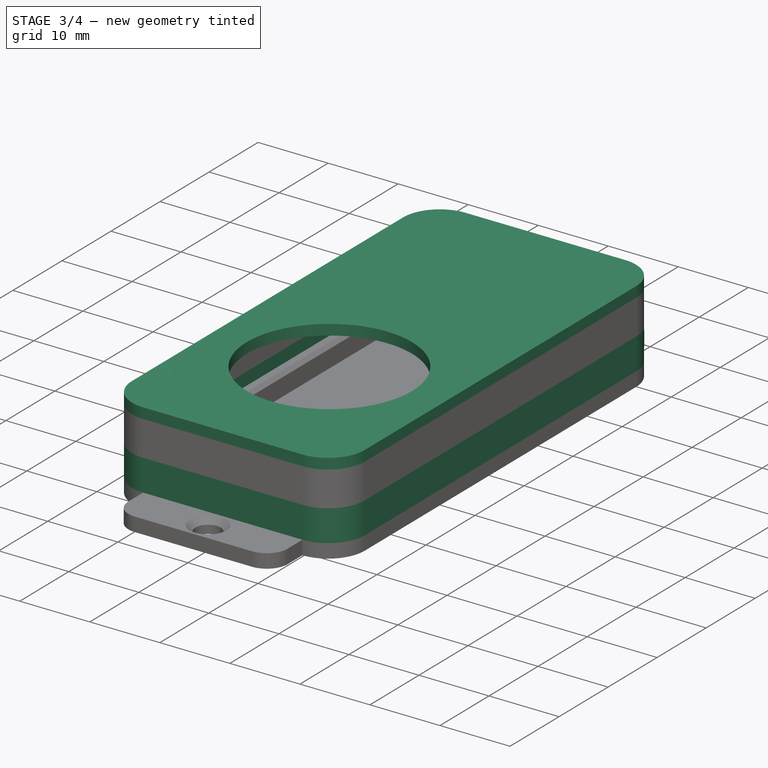
[diagram: stage 3 of 4 — iso view after this stage's code; geometry added in this stage tinted green]
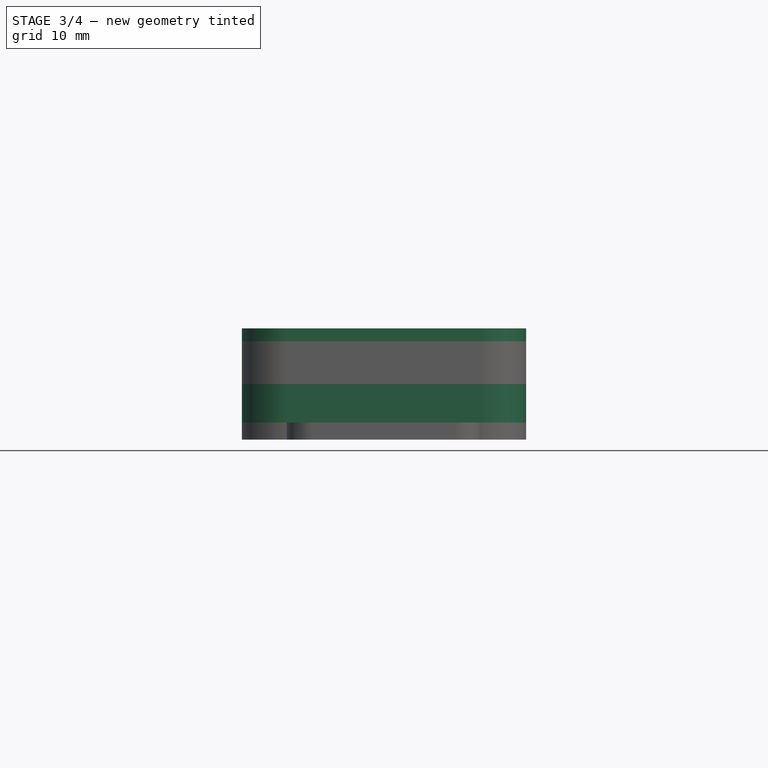
[diagram: stage 3 of 4 — front view after this stage's code; geometry added in this stage tinted green]
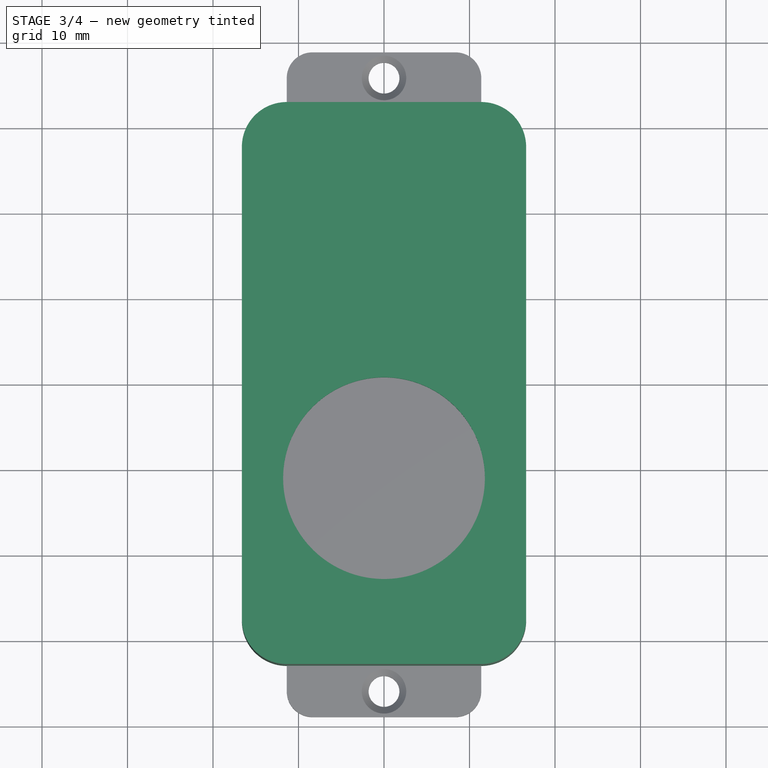
[diagram: stage 3 of 4 — top view after this stage's code; geometry added in this stage tinted green]
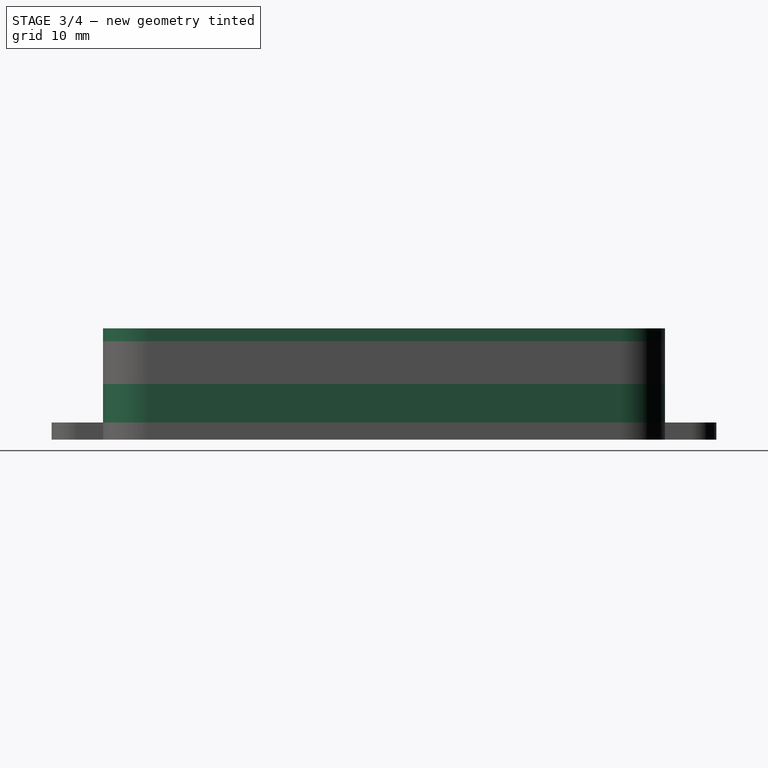
[diagram: stage 3 of 4 — right view after this stage's code; geometry added in this stage tinted green]
FEATURE [Sketcher::SketchObject] Sketch002  label="Front Panel Sketch"
  FullyConstrained = true
  MapMode = 5
  Support = -> [XY_Plane]
  sketch-geometry (34):
    g0: LineSegment StartX=-11.375 StartY=27.625 StartZ=0 EndX=11.375 EndY=27.625 EndZ=0
    g1: LineSegment StartX=11.375 StartY=27.625 StartZ=0 EndX=11.375 EndY=-27.625 EndZ=0
    g2: LineSegment StartX=11.375 StartY=-27.625 StartZ=0 EndX=-11.375 EndY=-27.625 EndZ=0
    g3: LineSegment StartX=-11.375 StartY=-27.625 StartZ=0 EndX=-11.375 EndY=27.625 EndZ=0
    g4: LineSegment StartX=-11.375 StartY=30.875 StartZ=0 EndX=11.375 EndY=30.875 EndZ=0
    g5: LineSegment StartX=14.625 StartY=27.625 StartZ=0 EndX=14.625 EndY=-27.625 EndZ=0
    g6: LineSegment StartX=11.375 StartY=-30.875 StartZ=0 EndX=-11.375 EndY=-30.875 EndZ=0
    g7: LineSegment StartX=-14.625 StartY=-27.625 StartZ=0 EndX=-14.625 EndY=27.625 EndZ=0
    g8: Circle CenterX=-11.375 CenterY=27.625 CenterZ=0 NormalX=0 NormalY=0 NormalZ=1 AngleXU=0 Radius=1
    g9: Circle CenterX=11.375 CenterY=27.625 CenterZ=0 NormalX=0 NormalY=0 NormalZ=1 AngleXU=0 Radius=1
    g10: Circle CenterX=11.375 CenterY=-27.625 CenterZ=0 NormalX=0 NormalY=0 NormalZ=1 AngleXU=0 Radius=1
    g11: Circle CenterX=-11.375 CenterY=-27.625 CenterZ=0 NormalX=0 NormalY=0 NormalZ=1 AngleXU=0 Radius=1
    g12: ArcOfCircle CenterX=11.375 CenterY=27.625 CenterZ=0 NormalX=0 NormalY=0 NormalZ=1 AngleXU=0 Radius=3.25 StartAngle=-9e-16 EndAngle=1.5708
    g13: ArcOfCircle CenterX=-11.375 CenterY=27.625 CenterZ=0 NormalX=0 NormalY=0 NormalZ=1 AngleXU=0 Radius=3.25 StartAngle=1.5708 EndAngle=3.14159
    g14: ArcOfCircle CenterX=-11.375 CenterY=-27.625 CenterZ=0 NormalX=0 NormalY=0 NormalZ=1 AngleXU=0 Radius=3.25 StartAngle=3.14159 EndAngle=4.71239
    g15: ArcOfCircle CenterX=11.375 CenterY=-27.625 CenterZ=0 NormalX=0 NormalY=0 NormalZ=1 AngleXU=0 Radius=3.25 StartAngle=4.71239 EndAngle=6.28319
    g16: LineSegment StartX=0 StartY=-27.625 StartZ=0 EndX=0 EndY=-11.125 EndZ=0
    g17: LineSegment StartX=-11.375 StartY=31.375 StartZ=0 EndX=11.375 EndY=31.375 EndZ=0
    g18: LineSegment StartX=15.125 StartY=27.625 StartZ=0 EndX=15.125 EndY=-27.625 EndZ=0
    g19: LineSegment StartX=11.375 StartY=-31.375 StartZ=0 EndX=-11.375 EndY=-31.375 EndZ=0
    g20: LineSegment StartX=-15.125 StartY=-27.625 StartZ=0 EndX=-15.125 EndY=27.625 EndZ=0
    g21: ArcOfCircle CenterX=11.375 CenterY=27.625 CenterZ=0 NormalX=0 NormalY=0 NormalZ=1 AngleXU=0 Radius=3.75 StartAngle=0 EndAngle=1.5708
    g22: ArcOfCircle CenterX=-11.375 CenterY=27.625 CenterZ=0 NormalX=0 NormalY=0 NormalZ=1 AngleXU=0 Radius=3.75 StartAngle=1.5708 EndAngle=3.14159
    g23: ArcOfCircle CenterX=-11.375 CenterY=-27.625 CenterZ=0 NormalX=0 NormalY=0 NormalZ=1 AngleXU=0 Radius=3.75 StartAngle=3.14159 EndAngle=4.71239
    g24: ArcOfCircle CenterX=11.375 CenterY=-27.625 CenterZ=0 NormalX=0 NormalY=0 NormalZ=1 AngleXU=0 Radius=3.75 StartAngle=4.71239 EndAngle=6.28319
    g25: LineSegment StartX=-11.375 StartY=32.875 StartZ=0 EndX=11.375 EndY=32.875 EndZ=0
    g26: LineSegment StartX=16.625 StartY=27.625 StartZ=0 EndX=16.625 EndY=-27.625 EndZ=0
    g27: LineSegment StartX=11.375 StartY=-32.875 StartZ=0 EndX=-11.375 EndY=-32.875 EndZ=0
    g28: LineSegment StartX=-16.625 StartY=-27.625 StartZ=0 EndX=-16.625 EndY=27.625 EndZ=0
    g29: ArcOfCircle CenterX=-11.375 CenterY=27.625 CenterZ=0 NormalX=0 NormalY=0 NormalZ=1 AngleXU=0 Radius=5.25 StartAngle=1.5708 EndAngle=3.14159
    g30: ArcOfCircle CenterX=-11.375 CenterY=-27.625 CenterZ=0 NormalX=0 NormalY=0 NormalZ=1 AngleXU=0 Radius=5.25 StartAngle=3.14159 EndAngle=4.71239
    g31: ArcOfCircle CenterX=11.375 CenterY=-27.625 CenterZ=0 NormalX=0 NormalY=0 NormalZ=1 AngleXU=0 Radius=5.25 StartAngle=4.71239 EndAngle=6.28319
    g32: ArcOfCircle CenterX=11.375 CenterY=27.625 CenterZ=0 NormalX=0 NormalY=0 NormalZ=1 AngleXU=0 Radius=5.25 StartAngle=0 EndAngle=1.5708
    g33: Circle CenterX=0 CenterY=-11.125 CenterZ=0 NormalX=0 NormalY=0 NormalZ=1 AngleXU=0 Radius=11.8
  constraints (72):
    c: Coincident(g0,g1)
    c: Coincident(g1,g2)
    c: Coincident(g2,g3)
    c: Coincident(g3,g0)
    c: Horizontal(g2)
    c: Vertical(g3)
    c: Horizontal(g4)
    c: Horizontal(g6)
    c: Vertical(g5)
    c: Coincident(g8,g0)
    c: Coincident(g9,g0)
    c: Coincident(g10,g1)
    c: Coincident(g11,g2)
    c: Radius(g11) = 1
    c: Equal(g11,g8)
    c: Equal(g11,g9)
    c: Equal(g11,g10)
    c: Symmetric(g0,g0,g-2)
    c: DistanceX(g0,g0) = 22.75
    c: Symmetric(g0,g1,g-1)
    c: DistanceY(g1,g1) = 55.25
    c: Tangent(g4,g12) = 1.5708
    c: Tangent(g5,g12) = 1.5708
    c: Tangent(g4,g13) = 1.5708
    c: Tangent(g7,g13) = 1.5708
    c: Tangent(g7,g14) = 1.5708
    c: Tangent(g6,g14) = 1.5708
    c: Tangent(g6,g15) = 1.5708
    c: Tangent(g5,g15) = 1.5708
    c: Coincident(g15,g1)
    c: Coincident(g2,g14)
    c: Coincident(g13,g0)
    c: Coincident(g12,g0)
    c: DistanceX(g7,g5) = 29.25
    c: Vertical(g16)
    c: DistanceY(g16,g16) = 16.5
    c: PointOnObject(g16,g2)
    c: PointOnObject(g16,g-2)
    c: Horizontal(g17)
    c: Horizontal(g19)
    c: Vertical(g18)
    c: Tangent(g17,g21) = 1.5708
    c: Tangent(g18,g21) = 1.5708
    c: Tangent(g17,g22) = 1.5708
    c: Tangent(g20,g22) = 1.5708
    c: Tangent(g20,g23) = 1.5708
    c: Tangent(g19,g23) = 1.5708
    c: Tangent(g19,g24) = 1.5708
    c: Tangent(g18,g24) = 1.5708
    c: Coincident(g24,g1)
    c: Coincident(g23,g2)
    c: Coincident(g21,g0)
    c: Coincident(g0,g22)
    c: DistanceY(g4,g17) = 0.5
    c: Horizontal(g25)
    c: Horizontal(g27)
    c: Vertical(g26)
    c: Tangent(g25,g29) = 1.5708
    c: Tangent(g28,g29) = 1.5708
    c: Tangent(g28,g30) = 1.5708
    c: Tangent(g27,g30) = 1.5708
    c: Tangent(g27,g31) = 1.5708
    c: Tangent(g26,g31) = 1.5708
    c: Tangent(g26,g32) = 1.5708
    c: Tangent(g25,g32) = 1.5708
    c: Coincident(g29,g22)
    c: Coincident(g21,g32)
    c: Coincident(g30,g23)
    c: Coincident(g31,g24)
    c: DistanceY(g17,g25) = 1.5
    c: Coincident(g33,g16)
    c: Radius(g33) = 11.8
FEATURE [PartDesign::Pad] Pad001  label="Front Plate"
  BaseFeature = -> Pad
  Direction = (1,1,1)
  Length = 1.5
  Length2 = 100
  Profile = -> Sketch002
  Type = 0
FEATURE [Sketcher::SketchObject] Sketch003  label="Rear Frame Sketch"
  AttachmentOffset = pos=(0,0,-5) rot=(0,0,1;0rad)
  FullyConstrained = true
  MapMode = 5
  Placement = pos=(0,0,-5) rot=(0,0,1;0rad)
  Support = -> [XY_Plane]
  sketch-geometry (33):
    g0: LineSegment StartX=-11.375 StartY=27.625 StartZ=0 EndX=11.375 EndY=27.625 EndZ=0
    g1: LineSegment StartX=11.375 StartY=27.625 StartZ=0 EndX=11.375 EndY=-27.625 EndZ=0
    g2: LineSegment StartX=11.375 StartY=-27.625 StartZ=0 EndX=-11.375 EndY=-27.625 EndZ=0
    g3: LineSegment StartX=-11.375 StartY=-27.625 StartZ=0 EndX=-11.375 EndY=27.625 EndZ=0
    g4: LineSegment StartX=-11.375 StartY=30.875 StartZ=0 EndX=11.375 EndY=30.875 EndZ=0
    g5: LineSegment StartX=14.625 StartY=27.625 StartZ=0 EndX=14.625 EndY=-27.625 EndZ=0
    g6: LineSegment StartX=11.375 StartY=-30.875 StartZ=0 EndX=-11.375 EndY=-30.875 EndZ=0
    g7: LineSegment StartX=-14.625 StartY=-27.625 StartZ=0 EndX=-14.625 EndY=27.625 EndZ=0
    g8: Circle CenterX=-11.375 CenterY=27.625 CenterZ=0 NormalX=0 NormalY=0 NormalZ=1 AngleXU=0 Radius=1
    g9: Circle CenterX=11.375 CenterY=27.625 CenterZ=0 NormalX=0 NormalY=0 NormalZ=1 AngleXU=0 Radius=1
    g10: Circle CenterX=11.375 CenterY=-27.625 CenterZ=0 NormalX=0 NormalY=0 NormalZ=1 AngleXU=0 Radius=1
    g11: Circle CenterX=-11.375 CenterY=-27.625 CenterZ=0 NormalX=0 NormalY=0 NormalZ=1 AngleXU=0 Radius=1
    g12: ArcOfCircle CenterX=11.375 CenterY=27.625 CenterZ=0 NormalX=0 NormalY=0 NormalZ=1 AngleXU=0 Radius=3.25 StartAngle=-9e-16 EndAngle=1.5708
    g13: ArcOfCircle CenterX=-11.375 CenterY=27.625 CenterZ=0 NormalX=0 NormalY=0 NormalZ=1 AngleXU=0 Radius=3.25 StartAngle=1.5708 EndAngle=3.14159
    g14: ArcOfCircle CenterX=-11.375 CenterY=-27.625 CenterZ=0 NormalX=0 NormalY=0 NormalZ=1 AngleXU=0 Radius=3.25 StartAngle=3.14159 EndAngle=4.71239
    g15: ArcOfCircle CenterX=11.375 CenterY=-27.625 CenterZ=0 NormalX=0 NormalY=0 NormalZ=1 AngleXU=0 Radius=3.25 StartAngle=4.71239 EndAngle=6.28319
    g16: LineSegment StartX=0 StartY=-27.625 StartZ=0 EndX=0 EndY=-11.125 EndZ=0
    g17: LineSegment StartX=-11.375 StartY=31.375 StartZ=0 EndX=11.375 EndY=31.375 EndZ=0
    g18: LineSegment StartX=15.125 StartY=27.625 StartZ=0 EndX=15.125 EndY=-27.625 EndZ=0
    g19: LineSegment StartX=11.375 StartY=-31.375 StartZ=0 EndX=-11.375 EndY=-31.375 EndZ=0
    g20: LineSegment StartX=-15.125 StartY=-27.625 StartZ=0 EndX=-15.125 EndY=27.625 EndZ=0
    g21: ArcOfCircle CenterX=11.375 CenterY=27.625 CenterZ=0 NormalX=0 NormalY=0 NormalZ=1 AngleXU=0 Radius=3.75 StartAngle=0 EndAngle=1.5708
    g22: ArcOfCircle CenterX=-11.375 CenterY=27.625 CenterZ=0 NormalX=0 NormalY=0 NormalZ=1 AngleXU=0 Radius=3.75 StartAngle=1.5708 EndAngle=3.14159
    g23: ArcOfCircle CenterX=-11.375 CenterY=-27.625 CenterZ=0 NormalX=0 NormalY=0 NormalZ=1 AngleXU=0 Radius=3.75 StartAngle=3.14159 EndAngle=4.71239
    g24: ArcOfCircle CenterX=11.375 CenterY=-27.625 CenterZ=0 NormalX=0 NormalY=0 NormalZ=1 AngleXU=0 Radius=3.75 StartAngle=4.71239 EndAngle=6.28319
    g25: LineSegment StartX=-11.375 StartY=32.875 StartZ=0 EndX=11.375 EndY=32.875 EndZ=0
    g26: LineSegment StartX=16.625 StartY=27.625 StartZ=0 EndX=16.625 EndY=-27.625 EndZ=0
    g27: LineSegment StartX=11.375 StartY=-32.875 StartZ=0 EndX=-11.375 EndY=-32.875 EndZ=0
    g28: LineSegment StartX=-16.625 StartY=-27.625 StartZ=0 EndX=-16.625 EndY=27.625 EndZ=0
    g29: ArcOfCircle CenterX=-11.375 CenterY=27.625 CenterZ=0 NormalX=0 NormalY=0 NormalZ=1 AngleXU=0 Radius=5.25 StartAngle=1.5708 EndAngle=3.14159
    g30: ArcOfCircle CenterX=-11.375 CenterY=-27.625 CenterZ=0 NormalX=0 NormalY=0 NormalZ=1 AngleXU=0 Radius=5.25 StartAngle=3.14159 EndAngle=4.71239
    g31: ArcOfCircle CenterX=11.375 CenterY=-27.625 CenterZ=0 NormalX=0 NormalY=0 NormalZ=1 AngleXU=0 Radius=5.25 StartAngle=4.71239 EndAngle=6.28319
    g32: ArcOfCircle CenterX=11.375 CenterY=27.625 CenterZ=0 NormalX=0 NormalY=0 NormalZ=1 AngleXU=0 Radius=5.25 StartAngle=0 EndAngle=1.5708
  constraints (70):
    c: Coincident(g0,g1)
    c: Coincident(g1,g2)
    c: Coincident(g2,g3)
    c: Coincident(g3,g0)
    c: Horizontal(g2)
    c: Vertical(g3)
    c: Horizontal(g4)
    c: Horizontal(g6)
    c: Vertical(g5)
    c: Coincident(g8,g0)
    c: Coincident(g9,g0)
    c: Coincident(g10,g1)
    c: Coincident(g11,g2)
    c: Radius(g11) = 1
    c: Equal(g11,g8)
    c: Equal(g11,g9)
    c: Equal(g11,g10)
    c: Symmetric(g0,g0,g-2)
    c: DistanceX(g0,g0) = 22.75
    c: Symmetric(g0,g1,g-1)
    c: DistanceY(g1,g1) = 55.25
    c: Tangent(g4,g12) = 1.5708
    c: Tangent(g5,g12) = 1.5708
    c: Tangent(g4,g13) = 1.5708
    c: Tangent(g7,g13) = 1.5708
    c: Tangent(g7,g14) = 1.5708
    c: Tangent(g6,g14) = 1.5708
    c: Tangent(g6,g15) = 1.5708
    c: Tangent(g5,g15) = 1.5708
    c: Coincident(g15,g1)
    c: Coincident(g2,g14)
    c: Coincident(g13,g0)
    c: Coincident(g12,g0)
    c: DistanceX(g7,g5) = 29.25
    c: Vertical(g16)
    c: DistanceY(g16,g16) = 16.5
    c: PointOnObject(g16,g2)
    c: PointOnObject(g16,g-2)
    c: Horizontal(g17)
    c: Horizontal(g19)
    c: Vertical(g18)
    c: Tangent(g17,g21) = 1.5708
    c: Tangent(g18,g21) = 1.5708
    c: Tangent(g17,g22) = 1.5708
    c: Tangent(g20,g22) = 1.5708
    c: Tangent(g20,g23) = 1.5708
    c: Tangent(g19,g23) = 1.5708
    c: Tangent(g19,g24) = 1.5708
    c: Tangent(g18,g24) = 1.5708
    c: Coincident(g24,g1)
    c: Coincident(g23,g2)
    c: Coincident(g21,g0)
    c: Coincident(g0,g22)
    c: DistanceY(g4,g17) = 0.5
    c: Horizontal(g25)
    c: Horizontal(g27)
    c: Vertical(g26)
    c: Tangent(g25,g29) = 1.5708
    c: Tangent(g28,g29) = 1.5708
    c: Tangent(g28,g30) = 1.5708
    c: Tangent(g27,g30) = 1.5708
    c: Tangent(g27,g31) = 1.5708
    c: Tangent(g26,g31) = 1.5708
    c: Tangent(g26,g32) = 1.5708
    c: Tangent(g25,g32) = 1.5708
    c: Coincident(g29,g22)
    c: Coincident(g21,g32)
    c: Coincident(g30,g23)
    c: Coincident(g31,g24)
    c: DistanceY(g17,g25) = 1.5
FEATURE [PartDesign::Pad] Pad002  label="Rear Riser"
  BaseFeature = -> Pad001
  Direction = (1,1,1)
  Length = 4.5
  Length2 = 100
  Profile = -> Sketch003
  Reversed = true
  Type = 0
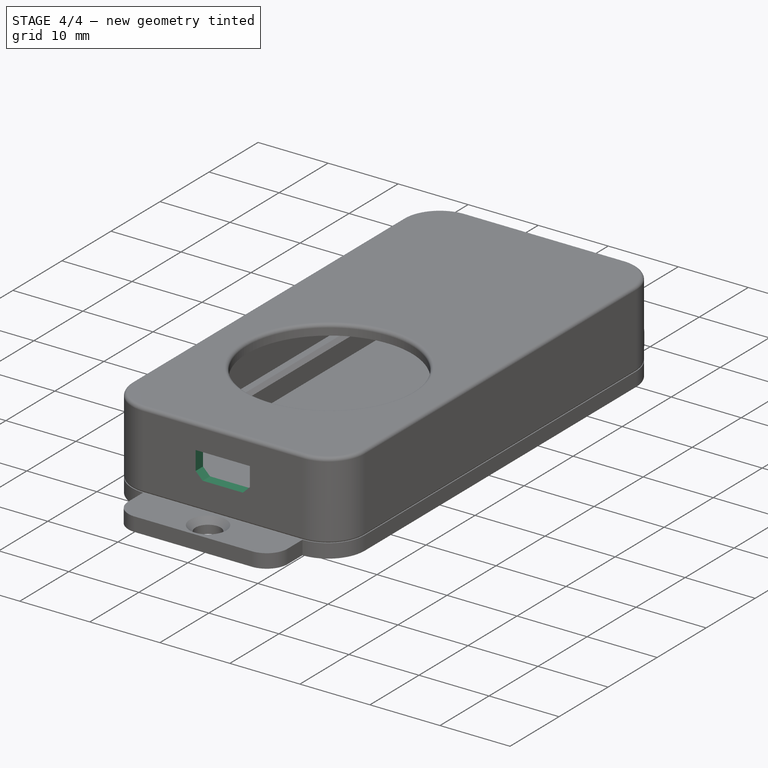
[diagram: stage 4 of 4 — iso view after this stage's code; geometry added in this stage tinted green]
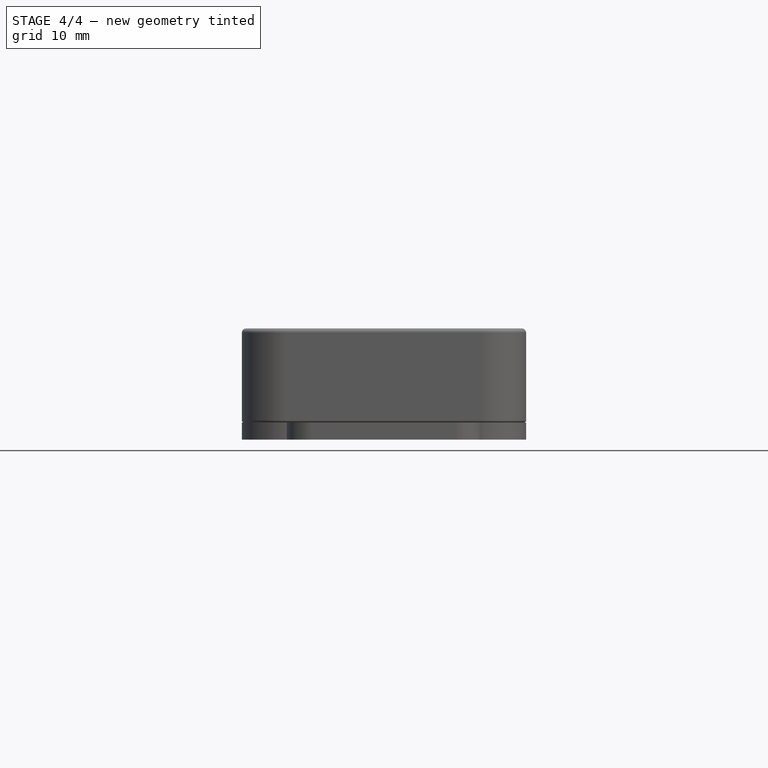
[diagram: stage 4 of 4 — front view after this stage's code; geometry added in this stage tinted green]
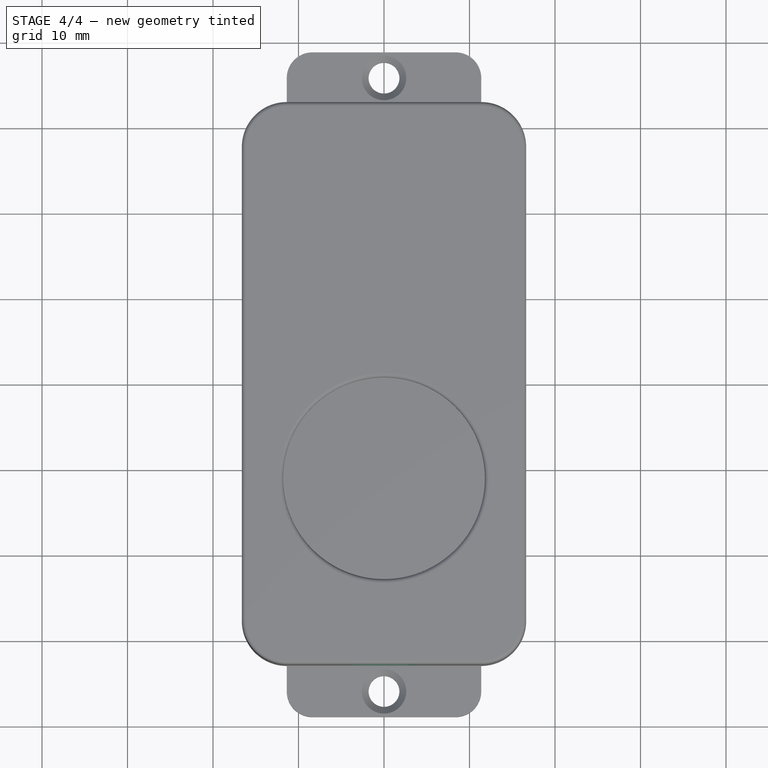
[diagram: stage 4 of 4 — top view after this stage's code; geometry added in this stage tinted green]
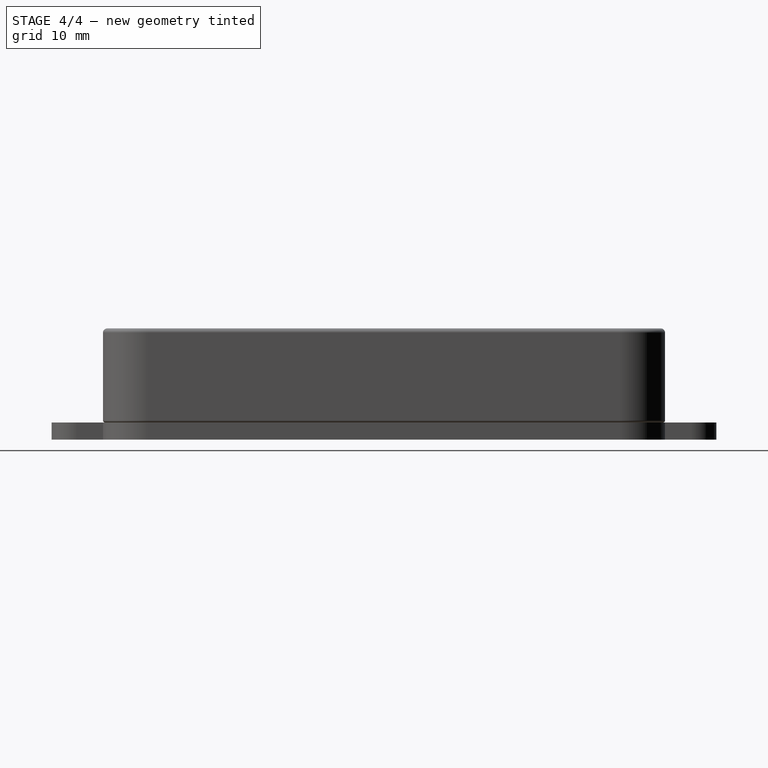
[diagram: stage 4 of 4 — right view after this stage's code; geometry added in this stage tinted green]
FEATURE [Sketcher::SketchObject] Sketch004
  FullyConstrained = true
  MapMode = 5
  Placement = pos=(0,0,0) rot=(1,0,0;1.5708rad)
  Support = -> [XZ_Plane]
  sketch-geometry (9):
    g0: LineSegment StartX=-3.875 StartY=-5.7 StartZ=0 EndX=3.875 EndY=-5.7 EndZ=0
    g1: LineSegment StartX=3.875 StartY=-5.7 StartZ=0 EndX=3.875 EndY=-2 EndZ=0
    g2: LineSegment StartX=3.875 StartY=-2 StartZ=0 EndX=-3.875 EndY=-2 EndZ=0
    g3: LineSegment StartX=-3.875 StartY=-2 StartZ=0 EndX=-3.875 EndY=-5.7 EndZ=0
    g4: LineSegment StartX=-3.875 StartY=-2 StartZ=0 EndX=-3.875 EndY=-4.7 EndZ=0
    g5: LineSegment StartX=-3.875 StartY=-4.7 StartZ=0 EndX=-2.875 EndY=-5.7 EndZ=0
    g6: LineSegment StartX=-2.875 StartY=-5.7 StartZ=0 EndX=2.875 EndY=-5.7 EndZ=0
    g7: LineSegment StartX=2.875 StartY=-5.7 StartZ=0 EndX=3.875 EndY=-4.7 EndZ=0
    g8: LineSegment StartX=3.875 StartY=-4.7 StartZ=0 EndX=3.875 EndY=-2 EndZ=0
  constraints (25):
    c: Coincident(g0,g1)
    c: Coincident(g1,g2)
    c: Coincident(g2,g3)
    c: Coincident(g3,g0)
    c: Horizontal(g2)
    c: Vertical(g1)
    c: Vertical(g3)
    c: Symmetric(g0,g0,g-2)
    c: DistanceY(g1,g1) = 3.7
    c: DistanceX(g0,g0) = 7.75
    c: DistanceY(g2,g-1) = 2
    c: Vertical(g4)
    c: Coincident(g5,g4)
    c: Coincident(g6,g5)
    c: Horizontal(g6)
    c: Coincident(g7,g6)
    c: Coincident(g8,g7)
    c: Vertical(g8)
    c: Angle(g7,g6) = 2.35619
    c: Angle(g6,g5) = 2.35619
    c: Equal(g5,g7)
    c: Coincident(g4,g2)
    c: Coincident(g8,g2)
    c: PointOnObject(g6,g0)
    c: DistanceX(g6,g0) = 1
FEATURE [PartDesign::Pocket] Pocket  label="USB Hole"
  BaseFeature = -> Pad002
  Length = 5
  Length2 = 100
  Profile = -> Sketch004
  Reversed = true
  Type = 1
FEATURE [PartDesign::Fillet] Fillet  label="Front Fillet"
  Base = -> Pocket [Face12]
  BaseFeature = -> Pocket
  Radius = 0.5
  SupportTransform = false
FEATURE [PartDesign::Fillet] Fillet001  label="Back Fillet"
  Base = -> Fillet [Face25]
  BaseFeature = -> Fillet
  Radius = 0.25
  SupportTransform = false
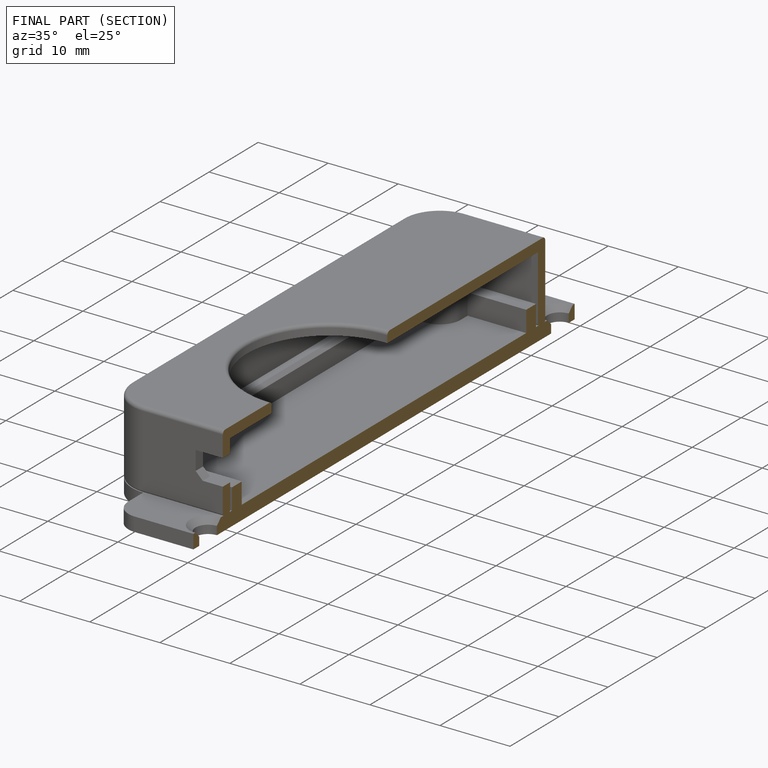
[diagram: finished part — half-section view (interior)]
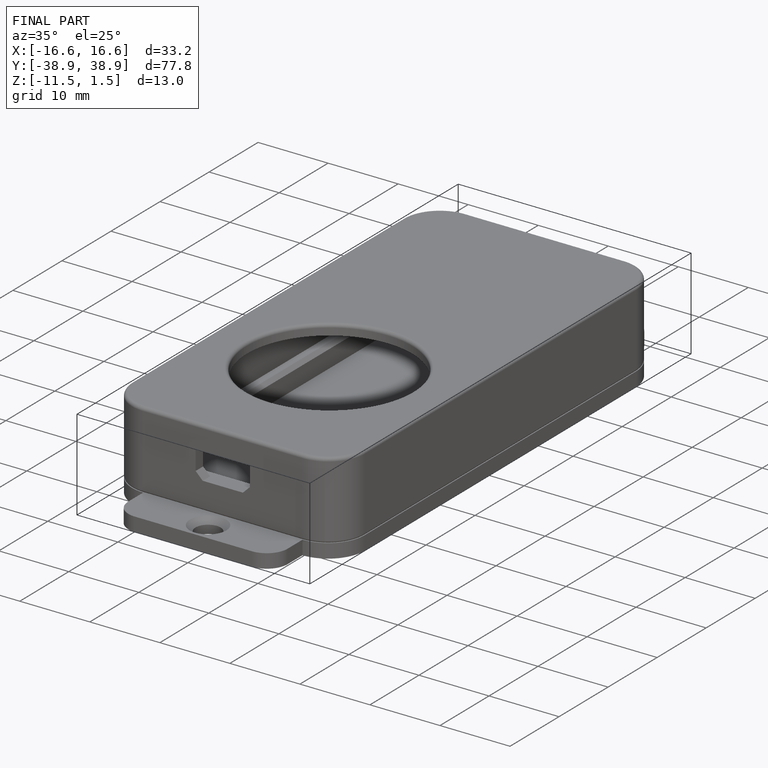
[diagram: finished part — iso view with bounding-box wireframe]
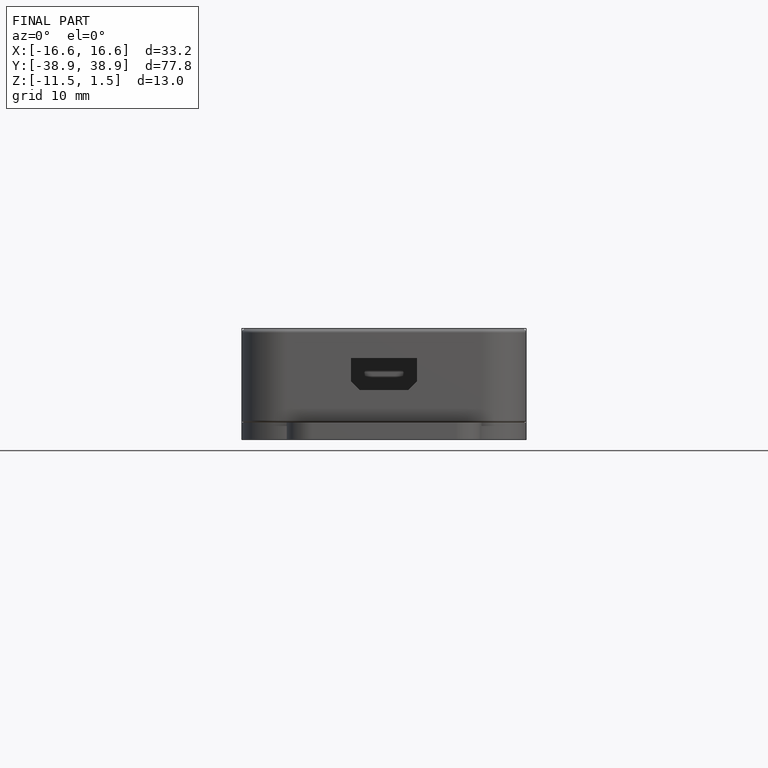
[diagram: finished part — front view with bounding-box wireframe]
